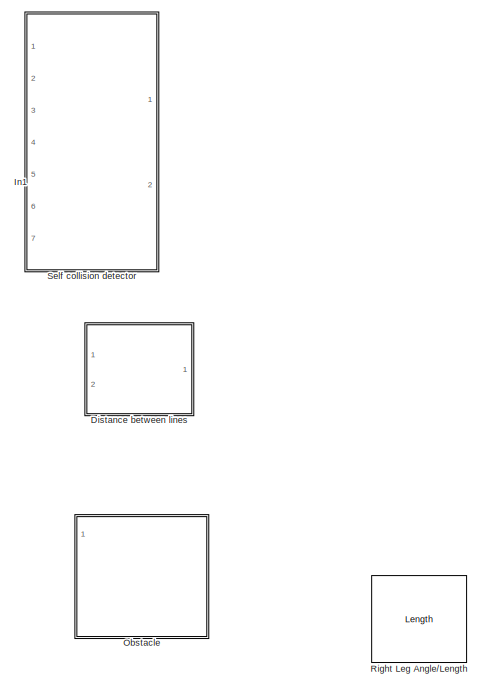
[diagram: root canvas - part 1/2, top right region]
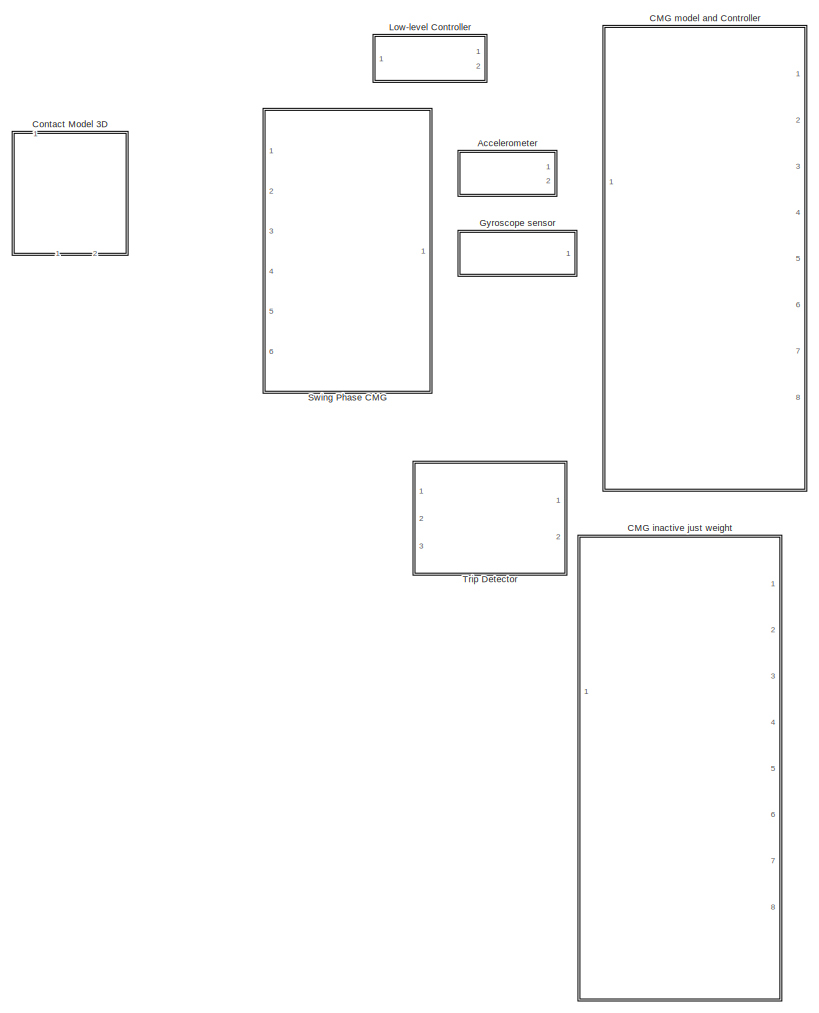
[diagram: root canvas - part 2/2, left side, full height]
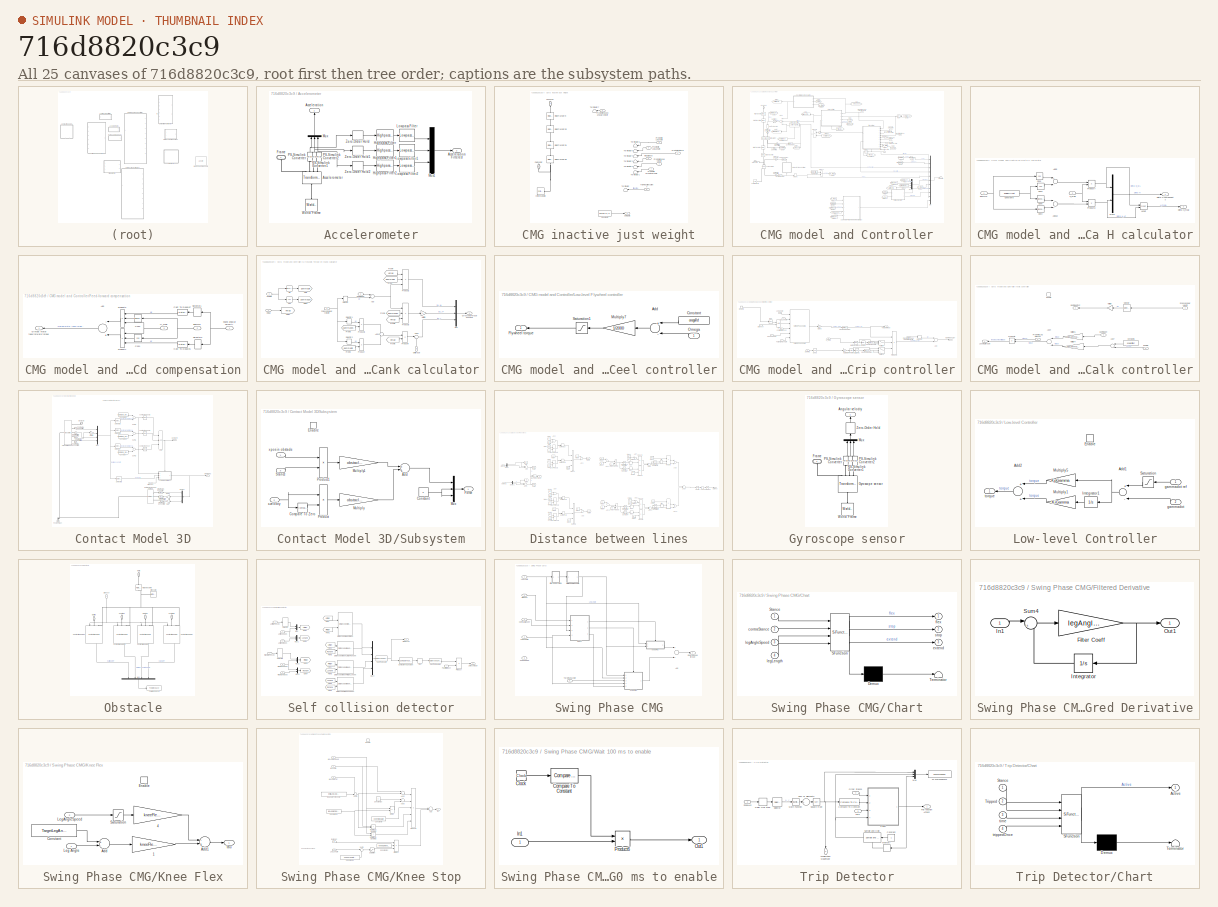
[diagram: thumbnail index - all 25 canvases of the model, root first then tree order]
MODEL slx_716d8820c3c9
KIND library
CONFIG AbsTol = auto
CONFIG EnableMultiTasking = off
CONFIG FixedStep = auto
CONFIG MaxStep = auto
CONFIG MinStep = auto
CONFIG RelTol = 1e-3
CONFIG SampleTimeConstraint = Unconstrained
CONFIG Solver = VariableStepAuto
CONFIG SolverName = VariableStepAuto
CONFIG StartTime = 0.0
CONFIG StopTime = 10.0
BLOCK [SubSystem] Accelerometer
  Ports = [0, 2, 0, 0, 0, 1]
  RequestExecContextInheritance = off
BLOCK [Outport] Accelerometer/Acceleration
  IconDisplay = Port number
BLOCK [Outport] Accelerometer/Acceleration Filtered
  IconDisplay = Port number
  Port = 2
BLOCK [Reference] Accelerometer/Accelerometer  REF=sm_lib/Frames and
Transforms/Transform
Sensor
  Ports = [0, 0, 0, 0, 0, 1, 4]
  SourceBlock = sm_lib/Frames and\nTransforms/Transform\nSensor
  SourceProductBaseCode = MS
  SourceProductName = Simscape Multibody
  SourceType = Transform\nSensor
BLOCK [PMIOPort] Accelerometer/Frame
  Side = Left
BLOCK [Reference] Accelerometer/Highpass Filter  REF=dspfdesign/Highpass Filter
  Ports = [1, 1]
  SourceBlock = dspfdesign/Highpass Filter
  SourceProductBaseCode = DS
  SourceProductName = DSP System Toolbox
  SourceType = dsp.HighpassFilter
BLOCK [Reference] Accelerometer/Highpass Filter1  REF=dspfdesign/Highpass Filter
  Ports = [1, 1]
  SourceBlock = dspfdesign/Highpass Filter
  SourceProductBaseCode = DS
  SourceProductName = DSP System Toolbox
  SourceType = dsp.HighpassFilter
BLOCK [Reference] Accelerometer/Highpass Filter2  REF=dspfdesign/Highpass Filter
  Ports = [1, 1]
  SourceBlock = dspfdesign/Highpass Filter
  SourceProductBaseCode = DS
  SourceProductName = DSP System Toolbox
  SourceType = dsp.HighpassFilter
BLOCK [Reference] Accelerometer/Lowpass Filter  REF=dspfdesign/Lowpass Filter
  Ports = [1, 1]
  SourceBlock = dspfdesign/Lowpass Filter
  SourceProductBaseCode = DS
  SourceProductName = DSP System Toolbox
  SourceType = dsp.LowpassFilter
BLOCK [Reference] Accelerometer/Lowpass Filter1  REF=dspfdesign/Lowpass Filter
  Ports = [1, 1]
  SourceBlock = dspfdesign/Lowpass Filter
  SourceProductBaseCode = DS
  SourceProductName = DSP System Toolbox
  SourceType = dsp.LowpassFilter
BLOCK [Reference] Accelerometer/Lowpass Filter2  REF=dspfdesign/Lowpass Filter
  Ports = [1, 1]
  SourceBlock = dspfdesign/Lowpass Filter
  SourceProductBaseCode = DS
  SourceProductName = DSP System Toolbox
  SourceType = dsp.LowpassFilter
BLOCK [Mux] Accelerometer/Mux
  DisplayOption = bar
  Inputs = 3
  Ports = [3, 1]
BLOCK [Mux] Accelerometer/Mux1
  DisplayOption = bar
  Inputs = 3
  Ports = [3, 1]
BLOCK [Reference] Accelerometer/PS-Simulink Converter  REF=nesl_utility/PS-Simulink
Converter
  Ports = [0, 1, 0, 0, 0, 1]
  SourceBlock = nesl_utility/PS-Simulink\nConverter
  SourceProductBaseCode = SS
  SourceProductName = Simscape
  SourceType = PS-Simulink\nConverter
BLOCK [Reference] Accelerometer/PS-Simulink Converter1  REF=nesl_utility/PS-Simulink
Converter
  Ports = [0, 1, 0, 0, 0, 1]
  SourceBlock = nesl_utility/PS-Simulink\nConverter
  SourceProductBaseCode = SS
  SourceProductName = Simscape
  SourceType = PS-Simulink\nConverter
BLOCK [Reference] Accelerometer/PS-Simulink Converter2  REF=nesl_utility/PS-Simulink
Converter
  Ports = [0, 1, 0, 0, 0, 1]
  SourceBlock = nesl_utility/PS-Simulink\nConverter
  SourceProductBaseCode = SS
  SourceProductName = Simscape
  SourceType = PS-Simulink\nConverter
BLOCK [Reference] Accelerometer/World Frame  REF=sm_lib/Frames and
Transforms/World Frame
  Ports = [0, 0, 0, 0, 0, 0, 1]
  SourceBlock = sm_lib/Frames and\nTransforms/World Frame
  SourceProductBaseCode = MS
  SourceProductName = Simscape Multibody
  SourceType = World Frame
BLOCK [ZeroOrderHold] Accelerometer/Zero-Order Hold
  SampleTime = zoh_sampletime
BLOCK [ZeroOrderHold] Accelerometer/Zero-Order Hold1
  SampleTime = zoh_sampletime
BLOCK [ZeroOrderHold] Accelerometer/Zero-Order Hold2
  SampleTime = zoh_sampletime
BLOCK [SubSystem] CMG inactive just weight
  Ports = [8, 1, 0, 0, 0, 1, 1]
  RequestExecContextInheritance = off
BLOCK [PMIOPort] CMG inactive just weight/CMG center
  Port = 2
  Side = Right
BLOCK [Outport] CMG inactive just weight/CMGData
  IconDisplay = Port number
BLOCK [Constant] CMG inactive just weight/Constant3
  Value = zeros(17,1)
BLOCK [Reference] CMG inactive just weight/Cylindrical Solid  REF=sm_lib/Body Elements/Cylindrical Solid
  Ports = [0, 0, 0, 0, 0, 0, 1]
  SourceBlock = sm_lib/Body Elements/Cylindrical Solid
  SourceProductBaseCode = MS
  SourceProductName = Simscape Multibody
  SourceType = Cylindrical Solid
BLOCK [Inport] CMG inactive just weight/Intact Stance
  IconDisplay = Port number
  Port = 6
BLOCK [Inport] CMG inactive just weight/Prosthetic Knee velocity
  IconDisplay = Port number
BLOCK [Inport] CMG inactive just weight/Prosthetic LegAngle
  IconDisplay = Port number
  Port = 2
BLOCK [Inport] CMG inactive just weight/Prosthetic LegLength
  IconDisplay = Port number
  Port = 3
BLOCK [Inport] CMG inactive just weight/Prosthetic Shank angular velocity
  IconDisplay = Port number
  Port = 8
BLOCK [Inport] CMG inactive just weight/Prosthetic Stance
  IconDisplay = Port number
  Port = 4
BLOCK [Inport] CMG inactive just weight/Prosthetic TargetLegAngle
  IconDisplay = Port number
  Port = 7
BLOCK [Reference] CMG inactive just weight/Rigid Transform  REF=sm_lib/Frames and
Transforms/Rigid
Transform
  Ports = [0, 0, 0, 0, 0, 1, 1]
  SourceBlock = sm_lib/Frames and\nTransforms/Rigid\nTransform
  SourceProductBaseCode = MS
  SourceProductName = Simscape Multibody
  SourceType = Rigid\nTransform
BLOCK [Reference] CMG inactive just weight/Rigid Transform1  REF=sm_lib/Frames and
Transforms/Rigid
Transform
  Ports = [0, 0, 0, 0, 0, 1, 1]
  SourceBlock = sm_lib/Frames and\nTransforms/Rigid\nTransform
  SourceProductBaseCode = MS
  SourceProductName = Simscape Multibody
  SourceType = Rigid\nTransform
BLOCK [Reference] CMG inactive just weight/Rigid Transform2  REF=sm_lib/Frames and
Transforms/Rigid
Transform
  Ports = [0, 0, 0, 0, 0, 1, 1]
  SourceBlock = sm_lib/Frames and\nTransforms/Rigid\nTransform
  SourceProductBaseCode = MS
  SourceProductName = Simscape Multibody
  SourceType = Rigid\nTransform
BLOCK [Reference] CMG inactive just weight/Rigid Transform5  REF=sm_lib/Frames and
Transforms/Rigid
Transform
  Ports = [0, 0, 0, 0, 0, 1, 1]
  SourceBlock = sm_lib/Frames and\nTransforms/Rigid\nTransform
  SourceProductBaseCode = MS
  SourceProductName = Simscape Multibody
  SourceType = Rigid\nTransform
BLOCK [PMIOPort] CMG inactive just weight/Shank CG
  Side = Left
BLOCK [Terminator] CMG inactive just weight/Terminator
BLOCK [Terminator] CMG inactive just weight/Terminator1
BLOCK [Terminator] CMG inactive just weight/Terminator2
BLOCK [Terminator] CMG inactive just weight/Terminator3
BLOCK [Terminator] CMG inactive just weight/Terminator4
BLOCK [Terminator] CMG inactive just weight/Terminator5
BLOCK [Terminator] CMG inactive just weight/Terminator6
BLOCK [Terminator] CMG inactive just weight/Terminator7
BLOCK [Inport] CMG inactive just weight/TripReactionActive?
  IconDisplay = Port number
  Port = 5
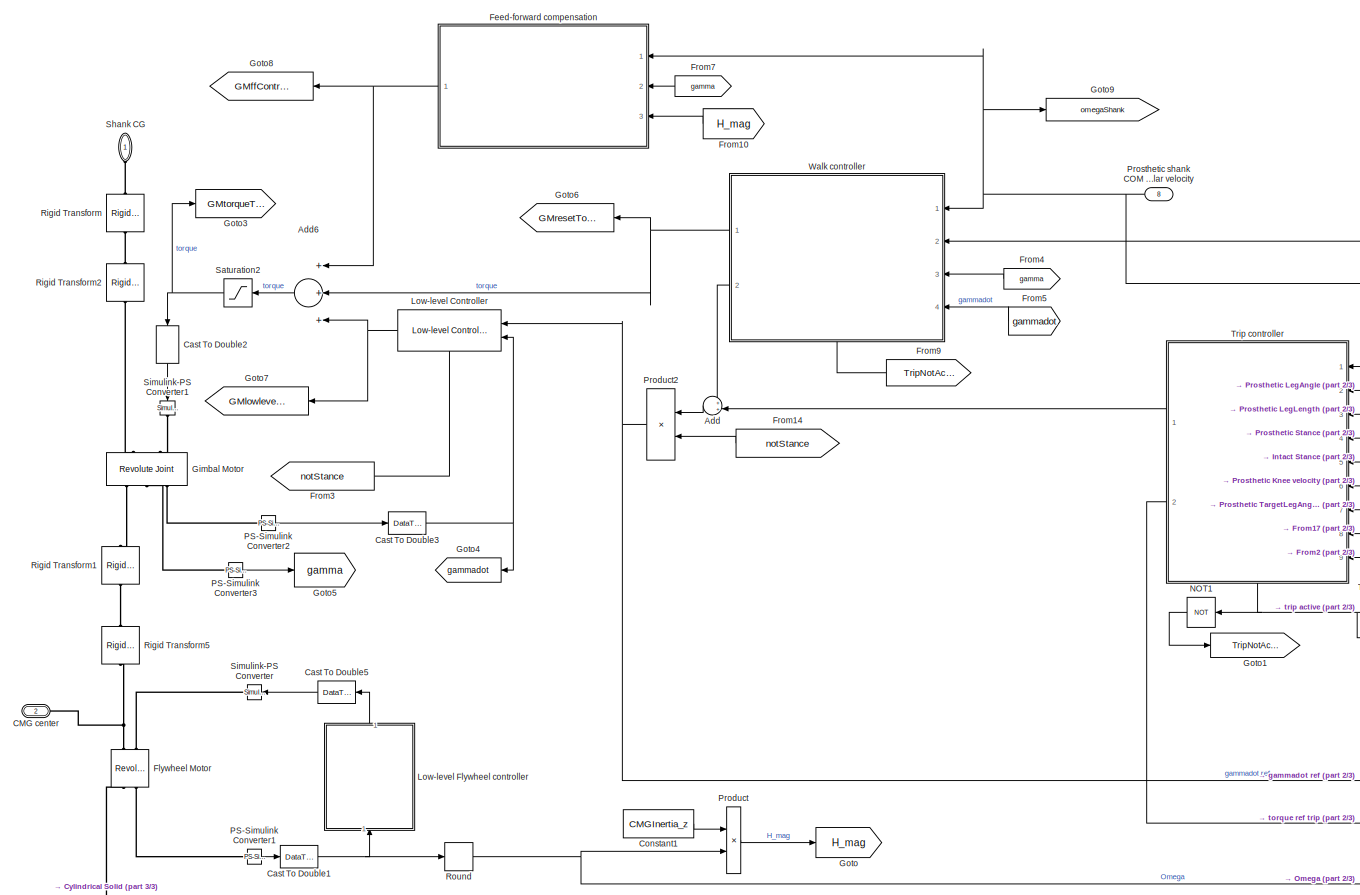
[diagram: CMG model and Controller - part 1/3, central region]
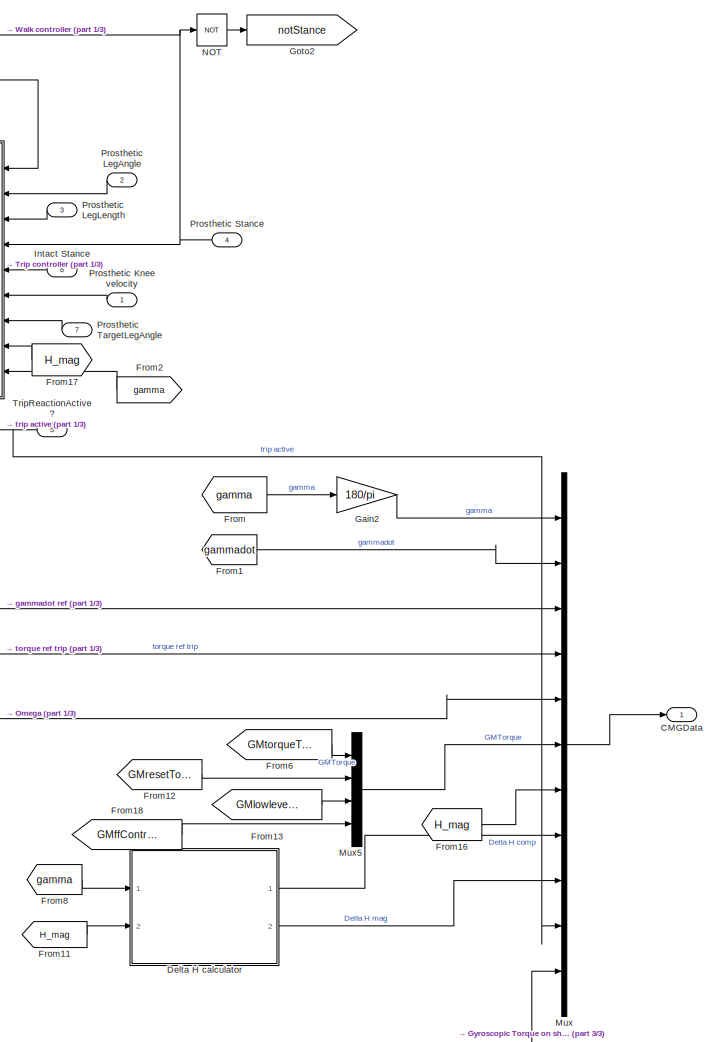
[diagram: CMG model and Controller - part 2/3, middle right region]
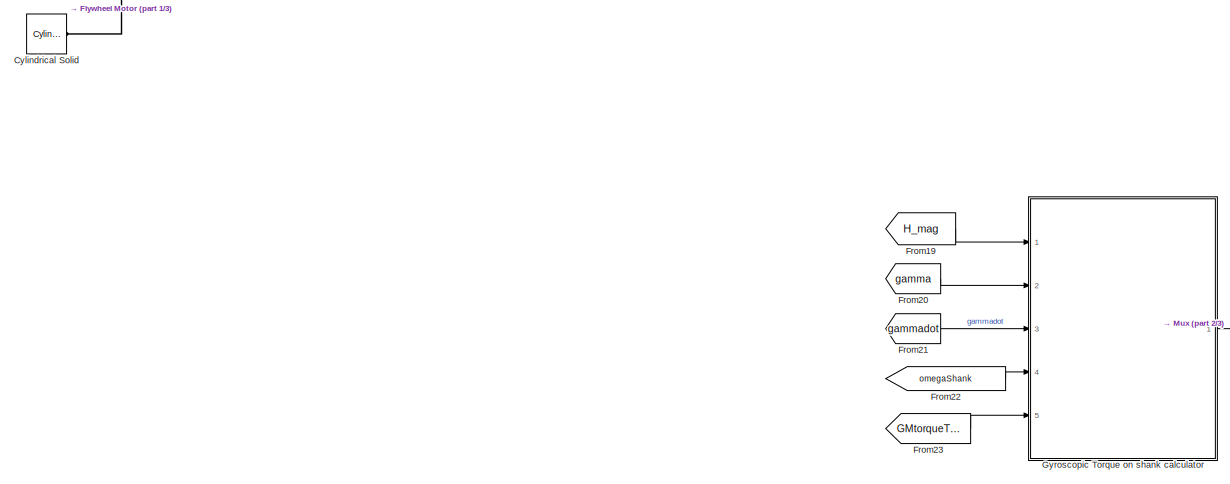
[diagram: CMG model and Controller - part 3/3, bottom left region]
BLOCK [SubSystem] CMG model and Controller
  Ports = [8, 1, 0, 0, 0, 1, 1]
  RequestExecContextInheritance = off
BLOCK [Sum] CMG model and Controller/Add
  IconShape = round
  InputSameDT = off
  Inputs = ++|
  OutDataTypeStr = Inherit: Inherit via internal rule
  Ports = [2, 1]
  SaturateOnIntegerOverflow = off
BLOCK [Sum] CMG model and Controller/Add6
  InputSameDT = off
  Inputs = +++
  OutDataTypeStr = Inherit: Inherit via internal rule
  Ports = [3, 1]
  SaturateOnIntegerOverflow = off
BLOCK [PMIOPort] CMG model and Controller/CMG center
  Port = 2
  Side = Right
BLOCK [Outport] CMG model and Controller/CMGData
  IconDisplay = Port number
BLOCK [DataTypeConversion] CMG model and Controller/Cast To Double1
  LockScale = on
  OutDataTypeStr = double
  RndMeth = Floor
  SaturateOnIntegerOverflow = off
BLOCK [DataTypeConversion] CMG model and Controller/Cast To Double2
  LockScale = on
  OutDataTypeStr = double
  RndMeth = Floor
  SaturateOnIntegerOverflow = off
BLOCK [DataTypeConversion] CMG model and Controller/Cast To Double3
  LockScale = on
  OutDataTypeStr = double
  RndMeth = Floor
  SaturateOnIntegerOverflow = off
BLOCK [DataTypeConversion] CMG model and Controller/Cast To Double5
  LockScale = on
  OutDataTypeStr = double
  RndMeth = Floor
  SaturateOnIntegerOverflow = off
BLOCK [Constant] CMG model and Controller/Constant1
  Value = CMGInertia_z
BLOCK [Reference] CMG model and Controller/Cylindrical Solid  REF=sm_lib/Body Elements/Cylindrical Solid
  Ports = [0, 0, 0, 0, 0, 0, 1]
  SourceBlock = sm_lib/Body Elements/Cylindrical Solid
  SourceProductBaseCode = MS
  SourceProductName = Simscape Multibody
  SourceType = Cylindrical Solid
BLOCK [SubSystem] CMG model and Controller/Delta H calculator
  Ports = [2, 2]
  RequestExecContextInheritance = off
BLOCK [Sum] CMG model and Controller/Delta H calculator/Add10
  InputSameDT = off
  Inputs = -+
  OutDataTypeStr = Inherit: Inherit via internal rule
  Ports = [2, 1]
  SaturateOnIntegerOverflow = off
BLOCK [Sum] CMG model and Controller/Delta H calculator/Add5
  InputSameDT = off
  Inputs = +-
  OutDataTypeStr = Inherit: Inherit via internal rule
  Ports = [2, 1]
  SaturateOnIntegerOverflow = off
BLOCK [Constant] CMG model and Controller/Delta H calculator/Constant6
  Value = angleOffset
BLOCK [Trigonometry] CMG model and Controller/Delta H calculator/Cos3
  Operator = cos
  OutputSignalType = real
  Ports = [1, 1]
BLOCK [Trigonometry] CMG model and Controller/Delta H calculator/Cos4
  OutputSignalType = real
  Ports = [1, 1]
BLOCK [Trigonometry] CMG model and Controller/Delta H calculator/Cos5
  Operator = cos
  OutputSignalType = real
  Ports = [1, 1]
BLOCK [Trigonometry] CMG model and Controller/Delta H calculator/Cos6
  OutputSignalType = real
  Ports = [1, 1]
BLOCK [Outport] CMG model and Controller/Delta H calculator/Delta H components
  IconDisplay = Port number
BLOCK [Outport] CMG model and Controller/Delta H calculator/Delta H_mag
  IconDisplay = Port number
  Port = 2
BLOCK [Inport] CMG model and Controller/Delta H calculator/H_mag
  IconDisplay = Port number
  Port = 2
BLOCK [Math] CMG model and Controller/Delta H calculator/Hypot
  Operator = hypot
  Ports = [2, 1]
  SignedPower = off
BLOCK [Mux] CMG model and Controller/Delta H calculator/Mux3
  DisplayOption = bar
  Inputs = 2
  Ports = [2, 1]
BLOCK [Product] CMG model and Controller/Delta H calculator/Product7
  InputSameDT = off
  OutDataTypeStr = Inherit: Inherit via internal rule
  Ports = [2, 1]
  RndMeth = Floor
  SaturateOnIntegerOverflow = off
BLOCK [Product] CMG model and Controller/Delta H calculator/Product8
  InputSameDT = off
  OutDataTypeStr = Inherit: Inherit via internal rule
  Ports = [2, 1]
  RndMeth = Floor
  SaturateOnIntegerOverflow = off
BLOCK [Inport] CMG model and Controller/Delta H calculator/gamma
  IconDisplay = Port number
BLOCK [SubSystem] CMG model and Controller/Feed-forward compensation
  Ports = [3, 1]
  RequestExecContextInheritance = off
BLOCK [Sum] CMG model and Controller/Feed-forward compensation/Add
  InputSameDT = off
  Inputs = -+
  OutDataTypeStr = Inherit: Inherit via internal rule
  Ports = [2, 1]
  SaturateOnIntegerOverflow = off
BLOCK [DataTypeConversion] CMG model and Controller/Feed-forward compensation/Cast To Double1
  LockScale = on
  OutDataTypeStr = double
  RndMeth = Floor
  SaturateOnIntegerOverflow = off
BLOCK [DataTypeConversion] CMG model and Controller/Feed-forward compensation/Cast To Double7
  LockScale = on
  OutDataTypeStr = double
  RndMeth = Floor
  SaturateOnIntegerOverflow = off
BLOCK [Trigonometry] CMG model and Controller/Feed-forward compensation/Cos1
  Operator = cos
  OutputSignalType = real
  Ports = [1, 1]
BLOCK [Trigonometry] CMG model and Controller/Feed-forward compensation/Cos2
  OutputSignalType = real
  Ports = [1, 1]
BLOCK [Outport] CMG model and Controller/Feed-forward compensation/Gimbal motor feed-forward torque
  IconDisplay = Port number
  InitialOutput = [0]
  OutputWhenDisabled = reset
BLOCK [Inport] CMG model and Controller/Feed-forward compensation/H_mag
  IconDisplay = Port number
  Port = 3
BLOCK [Product] CMG model and Controller/Feed-forward compensation/Product1
  InputSameDT = off
  Inputs = 3
  OutDataTypeStr = Inherit: Inherit via internal rule
  Ports = [3, 1]
  RndMeth = Floor
  SaturateOnIntegerOverflow = off
BLOCK [Product] CMG model and Controller/Feed-forward compensation/Product2
  InputSameDT = off
  Inputs = 3
  OutDataTypeStr = Inherit: Inherit via internal rule
  Ports = [3, 1]
  RndMeth = Floor
  SaturateOnIntegerOverflow = off
BLOCK [Selector] CMG model and Controller/Feed-forward compensation/Selector1
  IndexOptions = Index vector (dialog)
  Indices = [1]
  InputPortWidth = 3
  OutputSizes = 1
  Ports = [1, 1]
BLOCK [Selector] CMG model and Controller/Feed-forward compensation/Selector2
  IndexOptions = Index vector (dialog)
  Indices = [2]
  InputPortWidth = 3
  OutputSizes = 1
  Ports = [1, 1]
BLOCK [Inport] CMG model and Controller/Feed-forward compensation/Shank angular velocity
  IconDisplay = Port number
BLOCK [Inport] CMG model and Controller/Feed-forward compensation/gamma
  IconDisplay = Port number
  Port = 2
BLOCK [Reference] CMG model and Controller/Flywheel Motor  REF=sm_lib/Joints/Revolute Joint
  Ports = [0, 0, 0, 0, 0, 2, 2]
  SourceBlock = sm_lib/Joints/Revolute Joint
  SourceProductBaseCode = MS
  SourceProductName = Simscape Multibody
  SourceType = Revolute Joint
BLOCK [From] CMG model and Controller/From
  GotoTag = gamma
BLOCK [From] CMG model and Controller/From1
  GotoTag = gammadot
BLOCK [From] CMG model and Controller/From10
  GotoTag = H_mag
BLOCK [From] CMG model and Controller/From11
  GotoTag = H_mag
BLOCK [From] CMG model and Controller/From12
  GotoTag = GMresetTorque
BLOCK [From] CMG model and Controller/From13
  GotoTag = GMlowlevelControl
BLOCK [From] CMG model and Controller/From14
  GotoTag = notStance
BLOCK [From] CMG model and Controller/From16
  GotoTag = H_mag
BLOCK [From] CMG model and Controller/From17
  GotoTag = H_mag
BLOCK [From] CMG model and Controller/From18
  GotoTag = GMffControl
BLOCK [From] CMG model and Controller/From19
  GotoTag = H_mag
BLOCK [From] CMG model and Controller/From2
  GotoTag = gamma
BLOCK [From] CMG model and Controller/From20
  GotoTag = gamma
BLOCK [From] CMG model and Controller/From21
  GotoTag = gammadot
BLOCK [From] CMG model and Controller/From22
  GotoTag = omegaShank
BLOCK [From] CMG model and Controller/From23
  GotoTag = GMtorqueTotal
BLOCK [From] CMG model and Controller/From3
  GotoTag = notStance
BLOCK [From] CMG model and Controller/From4
  GotoTag = gamma
BLOCK [From] CMG model and Controller/From5
  GotoTag = gammadot
BLOCK [From] CMG model and Controller/From6
  GotoTag = GMtorqueTotal
BLOCK [From] CMG model and Controller/From7
  GotoTag = gamma
BLOCK [From] CMG model and Controller/From8
  GotoTag = gamma
BLOCK [From] CMG model and Controller/From9
  GotoTag = TripNotActive
BLOCK [Gain] CMG model and Controller/Gain2
  Gain = 180/pi
  OutDataTypeStr = Inherit: Inherit via internal rule
  ParamDataTypeStr = Inherit: Inherit via internal rule
  SaturateOnIntegerOverflow = off
BLOCK [Reference] CMG model and Controller/Gimbal Motor  REF=sm_lib/Joints/Revolute Joint
  Ports = [0, 0, 0, 0, 0, 2, 3]
  SourceBlock = sm_lib/Joints/Revolute Joint
  SourceProductBaseCode = MS
  SourceProductName = Simscape Multibody
  SourceType = Revolute Joint
BLOCK [Goto] CMG model and Controller/Goto
  GotoTag = H_mag
BLOCK [Goto] CMG model and Controller/Goto1
  GotoTag = TripNotActive
BLOCK [Goto] CMG model and Controller/Goto2
  GotoTag = notStance
BLOCK [Goto] CMG model and Controller/Goto3
  GotoTag = GMtorqueTotal
BLOCK [Goto] CMG model and Controller/Goto4
  GotoTag = gammadot
BLOCK [Goto] CMG model and Controller/Goto5
  GotoTag = gamma
BLOCK [Goto] CMG model and Controller/Goto6
  GotoTag = GMresetTorque
BLOCK [Goto] CMG model and Controller/Goto7
  GotoTag = GMlowlevelControl
BLOCK [Goto] CMG model and Controller/Goto8
  GotoTag = GMffControl
BLOCK [Goto] CMG model and Controller/Goto9
  GotoTag = omegaShank
BLOCK [SubSystem] CMG model and Controller/Gyroscopic Torque on shank calculator
  Ports = [5, 1]
  RequestExecContextInheritance = off
BLOCK [Sum] CMG model and Controller/Gyroscopic Torque on shank calculator/Add
  InputSameDT = off
  OutDataTypeStr = Inherit: Inherit via internal rule
  Ports = [2, 1]
  SaturateOnIntegerOverflow = off
BLOCK [Sum] CMG model and Controller/Gyroscopic Torque on shank calculator/Add1
  IconShape = round
  InputSameDT = off
  Inputs = +-
  OutDataTypeStr = Inherit: Inherit via internal rule
  Ports = [2, 1]
  SaturateOnIntegerOverflow = off
BLOCK [Sum] CMG model and Controller/Gyroscopic Torque on shank calculator/Add2
  IconShape = round
  InputSameDT = off
  Inputs = |+-
  OutDataTypeStr = Inherit: Inherit via internal rule
  Ports = [2, 1]
  SaturateOnIntegerOverflow = off
BLOCK [Trigonometry] CMG model and Controller/Gyroscopic Torque on shank calculator/Cos
  Operator = cos
  Ports = [1, 1]
BLOCK [From] CMG model and Controller/Gyroscopic Torque on shank calculator/From
  GotoTag = gammaSin
BLOCK [From] CMG model and Controller/Gyroscopic Torque on shank calculator/From1
  GotoTag = gammaCos
BLOCK [From] CMG model and Controller/Gyroscopic Torque on shank calculator/From2
  GotoTag = gammaSin
BLOCK [From] CMG model and Controller/Gyroscopic Torque on shank calculator/From3
  GotoTag = gammaCos
BLOCK [From] CMG model and Controller/Gyroscopic Torque on shank calculator/From4
  GotoTag = Hmag
BLOCK [From] CMG model and Controller/Gyroscopic Torque on shank calculator/From5
  GotoTag = Hmag
BLOCK [From] CMG model and Controller/Gyroscopic Torque on shank calculator/From6
  GotoTag = Hmag
BLOCK [Inport] CMG model and Controller/Gyroscopic Torque on shank calculator/GM torque
  IconDisplay = Port number
  Port = 5
BLOCK [Goto] CMG model and Controller/Gyroscopic Torque on shank calculator/Goto
  GotoTag = gammaSin
BLOCK [Goto] CMG model and Controller/Gyroscopic Torque on shank calculator/Goto1
  GotoTag = gammaCos
BLOCK [Goto] CMG model and Controller/Gyroscopic Torque on shank calculator/Goto2
  GotoTag = Hmag
BLOCK [Outport] CMG model and Controller/Gyroscopic Torque on shank calculator/Gyroscopic Torque on shank
  IconDisplay = Port number
BLOCK [Inport] CMG model and Controller/Gyroscopic Torque on shank calculator/H mag
  IconDisplay = Port number
BLOCK [Gain] CMG model and Controller/Gyroscopic Torque on shank calculator/Multiply
  Gain = -1
  OutDataTypeStr = Inherit: Inherit via internal rule
  ParamDataTypeStr = Inherit: Inherit via internal rule
  SaturateOnIntegerOverflow = off
BLOCK [Mux] CMG model and Controller/Gyroscopic Torque on shank calculator/Mux
  DisplayOption = bar
  Inputs = 3
  Ports = [3, 1]
BLOCK [Product] CMG model and Controller/Gyroscopic Torque on shank calculator/Product
  InputSameDT = off
  OutDataTypeStr = Inherit: Inherit via internal rule
  Ports = [2, 1]
  RndMeth = Floor
  SaturateOnIntegerOverflow = off
BLOCK [Product] CMG model and Controller/Gyroscopic Torque on shank calculator/Product1
  InputSameDT = off
  OutDataTypeStr = Inherit: Inherit via internal rule
  Ports = [2, 1]
  RndMeth = Floor
  SaturateOnIntegerOverflow = off
BLOCK [Product] CMG model and Controller/Gyroscopic Torque on shank calculator/Product2
  InputSameDT = off
  Inputs = 3
  OutDataTypeStr = Inherit: Inherit via internal rule
  Ports = [3, 1]
  RndMeth = Floor
  SaturateOnIntegerOverflow = off
BLOCK [Product] CMG model and Controller/Gyroscopic Torque on shank calculator/Product3
  InputSameDT = off
  Inputs = 3
  OutDataTypeStr = Inherit: Inherit via internal rule
  Ports = [3, 1]
  RndMeth = Floor
  SaturateOnIntegerOverflow = off
BLOCK [Product] CMG model and Controller/Gyroscopic Torque on shank calculator/Product4
  InputSameDT = off
  OutDataTypeStr = Inherit: Inherit via internal rule
  Ports = [2, 1]
  RndMeth = Floor
  SaturateOnIntegerOverflow = off
BLOCK [Selector] CMG model and Controller/Gyroscopic Torque on shank calculator/Selector
  IndexOptions = Index vector (dialog)
  Indices = [3]
  InputPortWidth = 3
  OutputSizes = 1
  Ports = [1, 1]
BLOCK [Selector] CMG model and Controller/Gyroscopic Torque on shank calculator/Selector1
  IndexOptions = Index vector (dialog)
  Indices = [2]
  InputPortWidth = 3
  OutputSizes = 1
  Ports = [1, 1]
BLOCK [Selector] CMG model and Controller/Gyroscopic Torque on shank calculator/Selector2
  IndexOptions = Index vector (dialog)
  Indices = [1]
  InputPortWidth = 3
  OutputSizes = 1
  Ports = [1, 1]
BLOCK [Inport] CMG model and Controller/Gyroscopic Torque on shank calculator/Shank angular velocity
  IconDisplay = Port number
  Port = 4
BLOCK [Trigonometry] CMG model and Controller/Gyroscopic Torque on shank calculator/Sin
  Ports = [1, 1]
BLOCK [Inport] CMG model and Controller/Gyroscopic Torque on shank calculator/gamma
  IconDisplay = Port number
  Port = 2
BLOCK [Inport] CMG model and Controller/Gyroscopic Torque on shank calculator/gammadot
  IconDisplay = Port number
  Port = 3
BLOCK [Inport] CMG model and Controller/Intact Stance
  IconDisplay = Port number
  Port = 6
BLOCK [Reference] CMG model and Controller/Low-level Controller  REF=$bdroot/Low-level Controller
  Ports = [2, 1, 1]
  SourceBlock = $bdroot/Low-level Controller
  SourceType = SubSystem
BLOCK [SubSystem] CMG model and Controller/Low-level Flywheel controller
  Ports = [1, 1]
  RequestExecContextInheritance = off
BLOCK [Sum] CMG model and Controller/Low-level Flywheel controller/Add
  InputSameDT = off
  Inputs = +-
  OutDataTypeStr = Inherit: Inherit via internal rule
  Ports = [2, 1]
  SaturateOnIntegerOverflow = off
BLOCK [Constant] CMG model and Controller/Low-level Flywheel controller/Constant
  Value = omegaRef
BLOCK [Outport] CMG model and Controller/Low-level Flywheel controller/Flywheel torque
  IconDisplay = Port number
BLOCK [Gain] CMG model and Controller/Low-level Flywheel controller/Multiply7
  Gain = 1/2000
  OutDataTypeStr = Inherit: Inherit via internal rule
  ParamDataTypeStr = Inherit: Inherit via internal rule
  SaturateOnIntegerOverflow = off
BLOCK [Inport] CMG model and Controller/Low-level Flywheel controller/Omega
  IconDisplay = Port number
BLOCK [Saturate] CMG model and Controller/Low-level Flywheel controller/Saturation1
  InputPortMap = u0
  LowerLimit = -maxTflywheelmotor
  Ports = [1, 1]
  UpperLimit = maxTflywheelmotor
BLOCK [Mux] CMG model and Controller/Mux
  DisplayOption = bar
  Inputs = [1 1 1 1 1 4 1 2 1 1 3]
  Ports = [11, 1]
BLOCK [Mux] CMG model and Controller/Mux5
  DisplayOption = bar
  Ports = [4, 1]
BLOCK [Logic] CMG model and Controller/NOT
  AllPortsSameDT = off
  IconShape = distinctive
  Operator = NOT
  OutDataTypeStr = boolean
  Ports = [1, 1]
BLOCK [Logic] CMG model and Controller/NOT1
  AllPortsSameDT = off
  IconShape = distinctive
  Operator = NOT
  OutDataTypeStr = boolean
  Ports = [1, 1]
BLOCK [Reference] CMG model and Controller/PS-Simulink Converter1  REF=nesl_utility/PS-Simulink
Converter
  Ports = [0, 1, 0, 0, 0, 1]
  SourceBlock = nesl_utility/PS-Simulink\nConverter
  SourceProductBaseCode = SS
  SourceProductName = Simscape
  SourceType = PS-Simulink\nConverter
BLOCK [Reference] CMG model and Controller/PS-Simulink Converter2  REF=nesl_utility/PS-Simulink
Converter
  Ports = [0, 1, 0, 0, 0, 1]
  SourceBlock = nesl_utility/PS-Simulink\nConverter
  SourceProductBaseCode = SS
  SourceProductName = Simscape
  SourceType = PS-Simulink\nConverter
BLOCK [Reference] CMG model and Controller/PS-Simulink Converter3  REF=nesl_utility/PS-Simulink
Converter
  Ports = [0, 1, 0, 0, 0, 1]
  SourceBlock = nesl_utility/PS-Simulink\nConverter
  SourceProductBaseCode = SS
  SourceProductName = Simscape
  SourceType = PS-Simulink\nConverter
BLOCK [Product] CMG model and Controller/Product
  InputSameDT = off
  OutDataTypeStr = Inherit: Inherit via internal rule
  Ports = [2, 1]
  RndMeth = Floor
  SaturateOnIntegerOverflow = off
BLOCK [Product] CMG model and Controller/Product2
  InputSameDT = off
  OutDataTypeStr = Inherit: Inherit via internal rule
  Ports = [2, 1]
  RndMeth = Floor
  SaturateOnIntegerOverflow = off
BLOCK [Inport] CMG model and Controller/Prosthetic Knee velocity
  IconDisplay = Port number
BLOCK [Inport] CMG model and Controller/Prosthetic LegAngle
  IconDisplay = Port number
  Port = 2
BLOCK [Inport] CMG model and Controller/Prosthetic LegLength
  IconDisplay = Port number
  Port = 3
BLOCK [Inport] CMG model and Controller/Prosthetic Stance
  IconDisplay = Port number
  Port = 4
BLOCK [Inport] CMG model and Controller/Prosthetic TargetLegAngle
  IconDisplay = Port number
  Port = 7
BLOCK [Inport] CMG model and Controller/Prosthetic shank COM angular velocity
  IconDisplay = Port number
  Port = 8
BLOCK [Reference] CMG model and Controller/Rigid Transform  REF=sm_lib/Frames and
Transforms/Rigid
Transform
  Ports = [0, 0, 0, 0, 0, 1, 1]
  SourceBlock = sm_lib/Frames and\nTransforms/Rigid\nTransform
  SourceProductBaseCode = MS
  SourceProductName = Simscape Multibody
  SourceType = Rigid\nTransform
BLOCK [Reference] CMG model and Controller/Rigid Transform1  REF=sm_lib/Frames and
Transforms/Rigid
Transform
  Ports = [0, 0, 0, 0, 0, 1, 1]
  SourceBlock = sm_lib/Frames and\nTransforms/Rigid\nTransform
  SourceProductBaseCode = MS
  SourceProductName = Simscape Multibody
  SourceType = Rigid\nTransform
BLOCK [Reference] CMG model and Controller/Rigid Transform2  REF=sm_lib/Frames and
Transforms/Rigid
Transform
  Ports = [0, 0, 0, 0, 0, 1, 1]
  SourceBlock = sm_lib/Frames and\nTransforms/Rigid\nTransform
  SourceProductBaseCode = MS
  SourceProductName = Simscape Multibody
  SourceType = Rigid\nTransform
BLOCK [Reference] CMG model and Controller/Rigid Transform5  REF=sm_lib/Frames and
Transforms/Rigid
Transform
  Ports = [0, 0, 0, 0, 0, 1, 1]
  SourceBlock = sm_lib/Frames and\nTransforms/Rigid\nTransform
  SourceProductBaseCode = MS
  SourceProductName = Simscape Multibody
  SourceType = Rigid\nTransform
BLOCK [Rounding] CMG model and Controller/Round
  Operator = round
BLOCK [Saturate] CMG model and Controller/Saturation2
  InputPortMap = u0
  LowerLimit = -maxGMTorque
  Ports = [1, 1]
  UpperLimit = maxGMTorque
BLOCK [PMIOPort] CMG model and Controller/Shank CG
  Side = Left
BLOCK [Reference] CMG model and Controller/Simulink-PS Converter  REF=nesl_utility/Simulink-PS
Converter
  Ports = [1, 0, 0, 0, 0, 0, 1]
  SourceBlock = nesl_utility/Simulink-PS\nConverter
  SourceProductBaseCode = SS
  SourceProductName = Simscape
  SourceType = Simulink-PS\nConverter
BLOCK [Reference] CMG model and Controller/Simulink-PS Converter1  REF=nesl_utility/Simulink-PS
Converter
  Ports = [1, 0, 0, 0, 0, 0, 1]
  SourceBlock = nesl_utility/Simulink-PS\nConverter
  SourceProductBaseCode = SS
  SourceProductName = Simscape
  SourceType = Simulink-PS\nConverter
BLOCK [SubSystem] CMG model and Controller/Trip controller
  Ports = [9, 2, 1]
  RequestExecContextInheritance = off
BLOCK [Sum] CMG model and Controller/Trip controller/Add
  InputSameDT = off
  Inputs = -+
  OutDataTypeStr = Inherit: Inherit via internal rule
  Ports = [2, 1]
  SaturateOnIntegerOverflow = off
BLOCK [DataTypeConversion] CMG model and Controller/Trip controller/Cast To Double
  LockScale = on
  OutDataTypeStr = double
  RndMeth = Floor
  SaturateOnIntegerOverflow = off
BLOCK [DataTypeConversion] CMG model and Controller/Trip controller/Cast To Double1
  LockScale = on
  OutDataTypeStr = double
  RndMeth = Floor
  SaturateOnIntegerOverflow = off
BLOCK [DataTypeConversion] CMG model and Controller/Trip controller/Cast To Double8
  LockScale = on
  OutDataTypeStr = double
  RndMeth = Floor
  SaturateOnIntegerOverflow = off
BLOCK [Trigonometry] CMG model and Controller/Trip controller/Cos1
  Operator = cos
  OutputSignalType = real
  Ports = [1, 1]
BLOCK [EnablePort] CMG model and Controller/Trip controller/Enable
  Ports = [0, 1]
  ShowOutputPort = on
  StatesWhenEnabling = reset
  ZeroCross = off
BLOCK [Gain] CMG model and Controller/Trip controller/Gain
  OutDataTypeStr = Inherit: Inherit via internal rule
  ParamDataTypeStr = Inherit: Inherit via internal rule
  SaturateOnIntegerOverflow = off
BLOCK [Gain] CMG model and Controller/Trip controller/Gain3
  Gain = -1
  OutDataTypeStr = Inherit: Inherit via internal rule
  ParamDataTypeStr = Inherit: Inherit via internal rule
  SaturateOnIntegerOverflow = off
BLOCK [Outport] CMG model and Controller/Trip controller/Gammadot_ref
  IconDisplay = Port number
  InitialOutput = [0]
  OutputWhenDisabled = reset
BLOCK [Inport] CMG model and Controller/Trip controller/H_mag
  IconDisplay = Port number
  Port = 8
BLOCK [RelationalOperator] CMG model and Controller/Trip controller/IsNaN
  InputSameDT = off
  Operator = isFinite
  OutDataTypeStr = boolean
  Ports = [1, 1]
  RndMeth = Simplest
BLOCK [RelationalOperator] CMG model and Controller/Trip controller/IsNaN1
  InputSameDT = off
  Operator = isFinite
  OutDataTypeStr = boolean
  Ports = [1, 1]
  RndMeth = Simplest
BLOCK [Inport] CMG model and Controller/Trip controller/Knee speed
  IconDisplay = Port number
  Port = 6
BLOCK [Inport] CMG model and Controller/Trip controller/Leg Length
  IconDisplay = Port number
  Port = 3
BLOCK [Inport] CMG model and Controller/Trip controller/Leg angle
  IconDisplay = Port number
  Port = 2
BLOCK [Math] CMG model and Controller/Trip controller/Math Reciprocal
  Operator = reciprocal
  Ports = [1, 1]
BLOCK [Math] CMG model and Controller/Trip controller/Math Reciprocal1
  Operator = reciprocal
  Ports = [1, 1]
BLOCK [Logic] CMG model and Controller/Trip controller/NOT
  AllPortsSameDT = off
  IconShape = distinctive
  Operator = NOT
  OutDataTypeStr = boolean
  Ports = [1, 1]
BLOCK [Logic] CMG model and Controller/Trip controller/OR
  AllPortsSameDT = off
  OutDataTypeStr = boolean
  Ports = [2, 1]
BLOCK [Product] CMG model and Controller/Trip controller/Product4
  InputSameDT = off
  Inputs = ***
  OutDataTypeStr = Inherit: Inherit via internal rule
  Ports = [3, 1]
  RndMeth = Floor
  SaturateOnIntegerOverflow = off
BLOCK [Inport] CMG model and Controller/Trip controller/Prosthetic Shank Angular velocity
  IconDisplay = Port number
BLOCK [Selector] CMG model and Controller/Trip controller/Selector
  IndexOptions = Index vector (dialog)
  Indices = [3]
  InputPortWidth = 3
  OutputSizes = 1
  Ports = [1, 1]
BLOCK [Reference] CMG model and Controller/Trip controller/Swing Phase CMG  REF=$bdroot/Swing Phase CMG
  Ports = [6, 1]
  SourceBlock = $bdroot/Swing Phase CMG
BLOCK [Switch] CMG model and Controller/Trip controller/Switch
  Criteria = u2 ~= 0
  InputSameDT = off
  SaturateOnIntegerOverflow = off
BLOCK [Switch] CMG model and Controller/Trip controller/Switch1
  Criteria = u2 ~= 0
  InputSameDT = off
  SaturateOnIntegerOverflow = off
BLOCK [Inport] CMG model and Controller/Trip controller/Target Leg Angle
  IconDisplay = Port number
  Port = 7
BLOCK [Outport] CMG model and Controller/Trip controller/Torque ref out
  IconDisplay = Port number
  InitialOutput = [0]
  OutputWhenDisabled = reset
  Port = 2
BLOCK [Inport] CMG model and Controller/Trip controller/contraStance?
  IconDisplay = Port number
  Port = 5
BLOCK [Inport] CMG model and Controller/Trip controller/gamma
  IconDisplay = Port number
  Port = 9
BLOCK [Inport] CMG model and Controller/Trip controller/stance?
  IconDisplay = Port number
  Port = 4
BLOCK [Inport] CMG model and Controller/TripReactionActive?
  IconDisplay = Port number
  Port = 5
BLOCK [SubSystem] CMG model and Controller/Walk controller
  Ports = [4, 2, 1]
  RequestExecContextInheritance = off
BLOCK [Sum] CMG model and Controller/Walk controller/Add4
  InputSameDT = off
  Inputs = --
  OutDataTypeStr = Inherit: Inherit via internal rule
  Ports = [2, 1]
  SaturateOnIntegerOverflow = off
BLOCK [Sum] CMG model and Controller/Walk controller/Add7
  InputSameDT = off
  Inputs = -+
  OutDataTypeStr = Inherit: Inherit via internal rule
  Ports = [2, 1]
  SaturateOnIntegerOverflow = off
BLOCK [Constant] CMG model and Controller/Walk controller/Constant5
  Value = angleOffset
BLOCK [EnablePort] CMG model and Controller/Walk controller/Enable
  Ports = []
  StatesWhenEnabling = reset
BLOCK [Outport] CMG model and Controller/Walk controller/Gammadot ref
  IconDisplay = Port number
  InitialOutput = [0]
  OutputWhenDisabled = reset
  Port = 2
BLOCK [Outport] CMG model and Controller/Walk controller/Locking torque
  IconDisplay = Port number
  InitialOutput = [0]
  OutputWhenDisabled = reset
BLOCK [Gain] CMG model and Controller/Walk controller/Multiply
  Gain = -1
  OutDataTypeStr = Inherit: Inherit via internal rule
  ParamDataTypeStr = Inherit: Inherit via internal rule
  SaturateOnIntegerOverflow = off
BLOCK [Gain] CMG model and Controller/Walk controller/Multiply4
  Gain = KpGammaReset
  OutDataTypeStr = Inherit: Inherit via internal rule
  ParamDataTypeStr = Inherit: Inherit via internal rule
  SaturateOnIntegerOverflow = off
BLOCK [Gain] CMG model and Controller/Walk controller/Multiply6
  Gain = KdGammaReset
  OutDataTypeStr = Inherit: Inherit via internal rule
  ParamDataTypeStr = Inherit: Inherit via internal rule
  SaturateOnIntegerOverflow = off
BLOCK [Product] CMG model and Controller/Walk controller/Product6
  InputSameDT = off
  OutDataTypeStr = Inherit: Inherit via internal rule
  Ports = [2, 1]
  RndMeth = Floor
  SaturateOnIntegerOverflow = off
BLOCK [Inport] CMG model and Controller/Walk controller/Prosthetic Leg stance?
  IconDisplay = Port number
  Port = 2
BLOCK [Selector] CMG model and Controller/Walk controller/Selector
  IndexOptions = Index vector (dialog)
  Indices = [3]
  InputPortWidth = 3
  OutputSizes = 1
  Ports = [1, 1]
BLOCK [Inport] CMG model and Controller/Walk controller/Shank angular velocity
  IconDisplay = Port number
BLOCK [Inport] CMG model and Controller/Walk controller/gamma
  IconDisplay = Port number
  Port = 3
BLOCK [Inport] CMG model and Controller/Walk controller/gammadot
  IconDisplay = Port number
  Port = 4
BLOCK [SubSystem] Contact Model 3D
  Ports = [1, 2, 0, 0, 0, 2]
  RequestExecContextInheritance = off
BLOCK [Reference] Contact Model 3D/ contact sensor  REF=simulink/Logic and Bit
Operations/Compare
To Zero
  Ports = [1, 1]
  SourceBlock = simulink/Logic and Bit\nOperations/Compare\nTo Zero
  SourceProductBaseCode = SL
  SourceProductName = Simulink
  SourceType = Compare To Zero
BLOCK [Reference] Contact Model 3D/ contact sensor1  REF=simulink/Logic and Bit
Operations/Compare
To Zero
  Ports = [1, 1]
  SourceBlock = simulink/Logic and Bit\nOperations/Compare\nTo Zero
  SourceProductBaseCode = SL
  SourceProductName = Simulink
  SourceType = Compare To Zero
BLOCK [Reference] Contact Model 3D/ contact sensor2  REF=simulink/Logic and Bit
Operations/Compare
To Zero
  Ports = [1, 1]
  SourceBlock = simulink/Logic and Bit\nOperations/Compare\nTo Zero
  SourceProductBaseCode = SL
  SourceProductName = Simulink
  SourceType = Compare To Zero
BLOCK [Logic] Contact Model 3D/AND
  AllPortsSameDT = off
  Inputs = 3
  OutDataTypeStr = boolean
  Ports = [3, 1]
BLOCK [Constant] Contact Model 3D/Constant
  Value = obstacle_depth/2
BLOCK [Constant] Contact Model 3D/Constant1
  Value = obstacle_height/2
BLOCK [Constant] Contact Model 3D/Constant2
  Value = obstacle_depth/2
BLOCK [Outport] Contact Model 3D/Contact?
  IconDisplay = Port number
BLOCK [Demux] Contact Model 3D/Demux
  DisplayOption = bar
  Outputs = 3
  Ports = [1, 3]
BLOCK [Reference] Contact Model 3D/External Force and Torque  REF=sm_lib/Forces and
Torques/External Force
and Torque
  Ports = [0, 0, 0, 0, 0, 3, 1]
  SourceBlock = sm_lib/Forces and\nTorques/External Force\nand Torque
  SourceProductBaseCode = MS
  SourceProductName = Simscape Multibody
  SourceType = External Force\nand Torque
BLOCK [PMIOPort] Contact Model 3D/Foot contact
  Side = Left
BLOCK [Outport] Contact Model 3D/GRF [N N N]
  IconDisplay = Port number
  Port = 2
BLOCK [Gain] Contact Model 3D/Gain
  Gain = 0
  OutDataTypeStr = Inherit: Inherit via internal rule
  ParamDataTypeStr = Inherit: Inherit via internal rule
  SaturateOnIntegerOverflow = off
BLOCK [Gain] Contact Model 3D/Gain3
  Gain = 0
  OutDataTypeStr = Inherit: Inherit via internal rule
  ParamDataTypeStr = Inherit: Inherit via internal rule
  SaturateOnIntegerOverflow = off
BLOCK [Gain] Contact Model 3D/Multiply
  Gain = -1
  OutDataTypeStr = Inherit: Inherit via internal rule
  ParamDataTypeStr = Inherit: Inherit via internal rule
  SaturateOnIntegerOverflow = off
BLOCK [Mux] Contact Model 3D/Mux
  DisplayOption = bar
  Ports = [4, 1]
BLOCK [PMIOPort] Contact Model 3D/Obstacle
  Port = 2
  Side = Left
BLOCK [Reference] Contact Model 3D/PS-Simulink Converter  REF=nesl_utility/PS-Simulink
Converter
  Ports = [0, 1, 0, 0, 0, 1]
  SourceBlock = nesl_utility/PS-Simulink\nConverter
  SourceProductBaseCode = SS
  SourceProductName = Simscape
  SourceType = PS-Simulink\nConverter
BLOCK [Reference] Contact Model 3D/PS-Simulink Converter1  REF=nesl_utility/PS-Simulink
Converter
  Ports = [0, 1, 0, 0, 0, 1]
  SourceBlock = nesl_utility/PS-Simulink\nConverter
  SourceProductBaseCode = SS
  SourceProductName = Simscape
  SourceType = PS-Simulink\nConverter
BLOCK [Reference] Contact Model 3D/PS-Simulink Converter2  REF=nesl_utility/PS-Simulink
Converter
  Ports = [0, 1, 0, 0, 0, 1]
  SourceBlock = nesl_utility/PS-Simulink\nConverter
  SourceProductBaseCode = SS
  SourceProductName = Simscape
  SourceType = PS-Simulink\nConverter
BLOCK [Reference] Contact Model 3D/PS-Simulink Converter3  REF=nesl_utility/PS-Simulink
Converter
  Ports = [0, 1, 0, 0, 0, 1]
  SourceBlock = nesl_utility/PS-Simulink\nConverter
  SourceProductBaseCode = SS
  SourceProductName = Simscape
  SourceType = PS-Simulink\nConverter
BLOCK [Selector] Contact Model 3D/Selector
  IndexOptions = Index vector (dialog)
  Indices = [1]
  InputPortWidth = 4
  OutputSizes = 1
  Ports = [1, 1]
BLOCK [Selector] Contact Model 3D/Selector1
  IndexOptions = Index vector (dialog)
  Indices = [3]
  InputPortWidth = 4
  OutputSizes = 1
  Ports = [1, 1]
BLOCK [Selector] Contact Model 3D/Selector2
  IndexOptions = Index vector (dialog)
  Indices = [1]
  InputPortWidth = 4
  OutputSizes = 1
  Ports = [1, 1]
BLOCK [Selector] Contact Model 3D/Selector3
  IndexOptions = Index vector (dialog)
  Indices = [4]
  InputPortWidth = 4
  OutputSizes = 1
  Ports = [1, 1]
BLOCK [Reference] Contact Model 3D/Simulink-PS Converter  REF=nesl_utility/Simulink-PS
Converter
  Ports = [1, 0, 0, 0, 0, 0, 1]
  SourceBlock = nesl_utility/Simulink-PS\nConverter
  SourceProductBaseCode = SS
  SourceProductName = Simscape
  SourceType = Simulink-PS\nConverter
BLOCK [Reference] Contact Model 3D/Simulink-PS Converter1  REF=nesl_utility/Simulink-PS
Converter
  Ports = [1, 0, 0, 0, 0, 0, 1]
  SourceBlock = nesl_utility/Simulink-PS\nConverter
  SourceProductBaseCode = SS
  SourceProductName = Simscape
  SourceType = Simulink-PS\nConverter
BLOCK [Reference] Contact Model 3D/Simulink-PS Converter2  REF=nesl_utility/Simulink-PS
Converter
  Ports = [1, 0, 0, 0, 0, 0, 1]
  SourceBlock = nesl_utility/Simulink-PS\nConverter
  SourceProductBaseCode = SS
  SourceProductName = Simscape
  SourceType = Simulink-PS\nConverter
BLOCK [Inport] Contact Model 3D/Stance?
  IconDisplay = Port number
BLOCK [SubSystem] Contact Model 3D/Subsystem
  Ports = [3, 1, 1]
  RequestExecContextInheritance = off
BLOCK [Sum] Contact Model 3D/Subsystem/Add
  InputSameDT = off
  OutDataTypeStr = Inherit: Inherit via internal rule
  Ports = [2, 1]
  SaturateOnIntegerOverflow = off
BLOCK [Reference] Contact Model 3D/Subsystem/Compare To Zero  REF=simulink/Logic and Bit
Operations/Compare
To Zero
  Ports = [1, 1]
  SourceBlock = simulink/Logic and Bit\nOperations/Compare\nTo Zero
  SourceProductBaseCode = SL
  SourceProductName = Simulink
  SourceType = Compare To Zero
BLOCK [Constant] Contact Model 3D/Subsystem/Constant
  Value = 0
BLOCK [EnablePort] Contact Model 3D/Subsystem/Enable
  Ports = []
  StatesWhenEnabling = reset
BLOCK [Outport] Contact Model 3D/Subsystem/Force
  IconDisplay = Port number
  InitialOutput = [0 0 0]
  OutputWhenDisabled = reset
BLOCK [Gain] Contact Model 3D/Subsystem/Multiply
  Gain = obstacle_damping
  OutDataTypeStr = Inherit: Inherit via internal rule
  ParamDataTypeStr = Inherit: Inherit via internal rule
  SaturateOnIntegerOverflow = off
BLOCK [Gain] Contact Model 3D/Subsystem/Multiply1
  Gain = obstacle_stiffness
  OutDataTypeStr = Inherit: Inherit via internal rule
  ParamDataTypeStr = Inherit: Inherit via internal rule
  SaturateOnIntegerOverflow = off
BLOCK [Mux] Contact Model 3D/Subsystem/Mux
  DisplayOption = bar
  Inputs = 3
  Ports = [3, 1]
BLOCK [Product] Contact Model 3D/Subsystem/Product
  InputSameDT = off
  OutDataTypeStr = Inherit: Inherit via internal rule
  Ports = [2, 1]
  RndMeth = Floor
  SaturateOnIntegerOverflow = off
BLOCK [Product] Contact Model 3D/Subsystem/Product1
  InputSameDT = off
  OutDataTypeStr = Inherit: Inherit via internal rule
  Ports = [2, 1]
  RndMeth = Floor
  SaturateOnIntegerOverflow = off
BLOCK [Inport] Contact Model 3D/Subsystem/Stance
  IconDisplay = Port number
  Port = 3
BLOCK [Inport] Contact Model 3D/Subsystem/x pos in obstacle
  IconDisplay = Port number
BLOCK [Inport] Contact Model 3D/Subsystem/x-velocity
  IconDisplay = Port number
  Port = 2
BLOCK [Sum] Contact Model 3D/Sum1
  InputSameDT = off
  Inputs = --
  OutDataTypeStr = Inherit: Inherit via internal rule
  Ports = [2, 1]
  SaturateOnIntegerOverflow = off
BLOCK [Sum] Contact Model 3D/Sum2
  InputSameDT = off
  Inputs = --
  OutDataTypeStr = Inherit: Inherit via internal rule
  Ports = [2, 1]
  SaturateOnIntegerOverflow = off
BLOCK [Sum] Contact Model 3D/Sum3
  InputSameDT = off
  Inputs = -+
  OutDataTypeStr = Inherit: Inherit via internal rule
  Ports = [2, 1]
  SaturateOnIntegerOverflow = off
BLOCK [Reference] Contact Model 3D/Transform Sensor  REF=sm_lib/Frames and
Transforms/Transform
Sensor
  Ports = [0, 0, 0, 0, 0, 1, 5]
  SourceBlock = sm_lib/Frames and\nTransforms/Transform\nSensor
  SourceProductBaseCode = MS
  SourceProductName = Simscape Multibody
  SourceType = Transform\nSensor
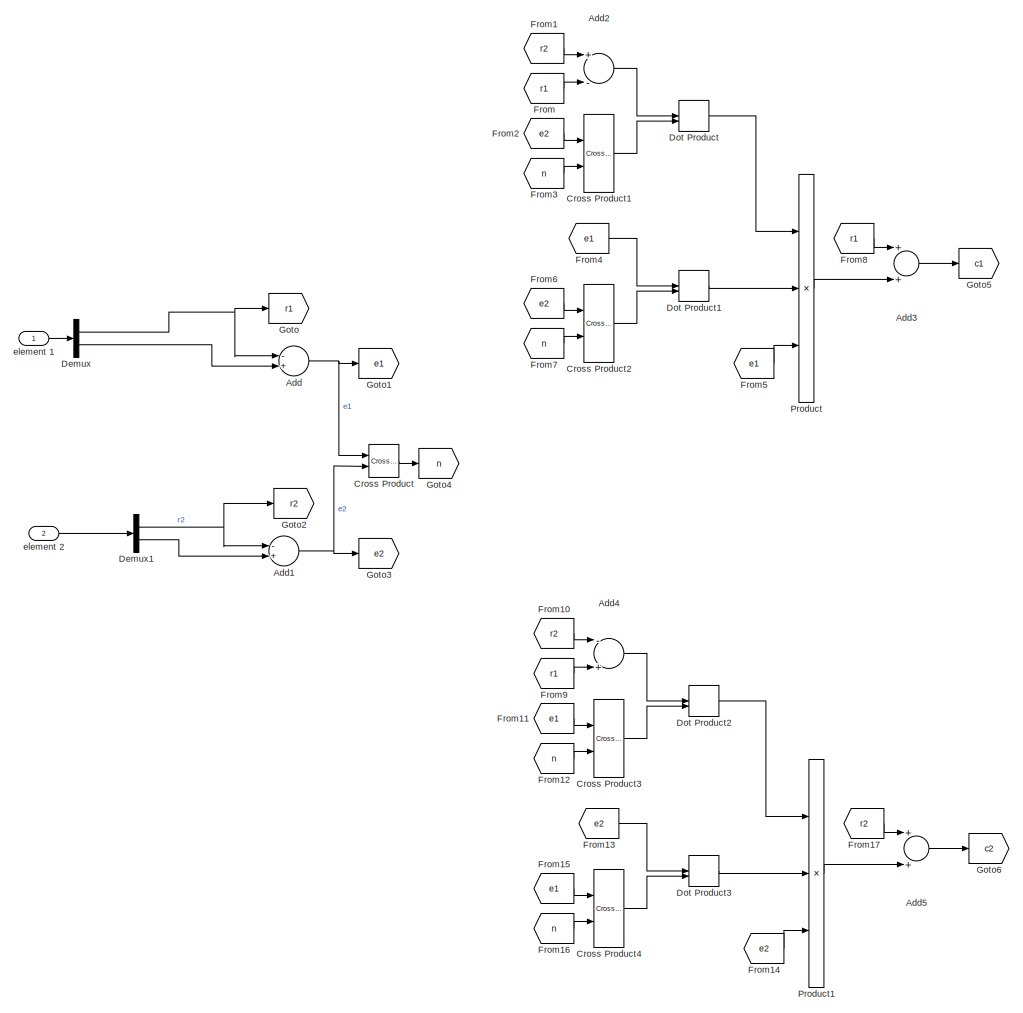
[diagram: Distance between lines - part 1/2, left side, full height]
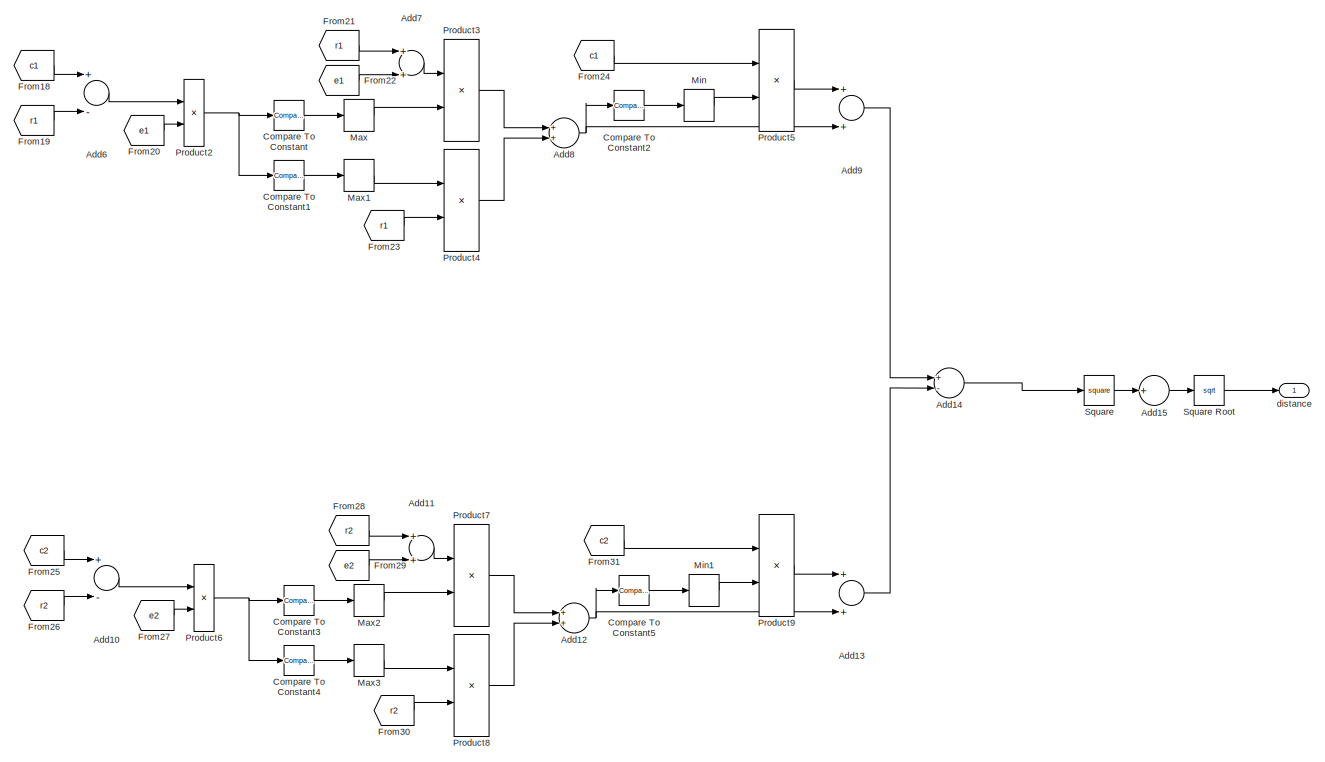
[diagram: Distance between lines - part 2/2, right side, full height]
BLOCK [SubSystem] Distance between lines
  Ports = [2, 1]
  RequestExecContextInheritance = off
BLOCK [Sum] Distance between lines/Add
  InputSameDT = off
  Inputs = -+
  OutDataTypeStr = Inherit: Inherit via internal rule
  Ports = [2, 1]
  SaturateOnIntegerOverflow = off
BLOCK [Sum] Distance between lines/Add1
  InputSameDT = off
  Inputs = -+
  OutDataTypeStr = Inherit: Inherit via internal rule
  Ports = [2, 1]
  SaturateOnIntegerOverflow = off
BLOCK [Sum] Distance between lines/Add10
  InputSameDT = off
  Inputs = +-
  OutDataTypeStr = Inherit: Inherit via internal rule
  Ports = [2, 1]
  SaturateOnIntegerOverflow = off
BLOCK [Sum] Distance between lines/Add11
  InputSameDT = off
  OutDataTypeStr = Inherit: Inherit via internal rule
  Ports = [2, 1]
  SaturateOnIntegerOverflow = off
BLOCK [Sum] Distance between lines/Add12
  InputSameDT = off
  OutDataTypeStr = Inherit: Inherit via internal rule
  Ports = [2, 1]
  SaturateOnIntegerOverflow = off
BLOCK [Sum] Distance between lines/Add13
  InputSameDT = off
  OutDataTypeStr = Inherit: Inherit via internal rule
  Ports = [2, 1]
  SaturateOnIntegerOverflow = off
BLOCK [Sum] Distance between lines/Add14
  InputSameDT = off
  Inputs = +-
  OutDataTypeStr = Inherit: Inherit via internal rule
  Ports = [2, 1]
  SaturateOnIntegerOverflow = off
BLOCK [Sum] Distance between lines/Add15
  CollapseMode = Specified dimension
  InputSameDT = off
  Inputs = +
  OutDataTypeStr = Inherit: Inherit via internal rule
  Ports = [1, 1]
  SaturateOnIntegerOverflow = off
BLOCK [Sum] Distance between lines/Add2
  InputSameDT = off
  Inputs = +-
  OutDataTypeStr = Inherit: Inherit via internal rule
  Ports = [2, 1]
  SaturateOnIntegerOverflow = off
BLOCK [Sum] Distance between lines/Add3
  InputSameDT = off
  OutDataTypeStr = Inherit: Inherit via internal rule
  Ports = [2, 1]
  SaturateOnIntegerOverflow = off
BLOCK [Sum] Distance between lines/Add4
  InputSameDT = off
  Inputs = -+
  OutDataTypeStr = Inherit: Inherit via internal rule
  Ports = [2, 1]
  SaturateOnIntegerOverflow = off
BLOCK [Sum] Distance between lines/Add5
  InputSameDT = off
  OutDataTypeStr = Inherit: Inherit via internal rule
  Ports = [2, 1]
  SaturateOnIntegerOverflow = off
BLOCK [Sum] Distance between lines/Add6
  InputSameDT = off
  Inputs = +-
  OutDataTypeStr = Inherit: Inherit via internal rule
  Ports = [2, 1]
  SaturateOnIntegerOverflow = off
BLOCK [Sum] Distance between lines/Add7
  InputSameDT = off
  OutDataTypeStr = Inherit: Inherit via internal rule
  Ports = [2, 1]
  SaturateOnIntegerOverflow = off
BLOCK [Sum] Distance between lines/Add8
  InputSameDT = off
  OutDataTypeStr = Inherit: Inherit via internal rule
  Ports = [2, 1]
  SaturateOnIntegerOverflow = off
BLOCK [Sum] Distance between lines/Add9
  InputSameDT = off
  OutDataTypeStr = Inherit: Inherit via internal rule
  Ports = [2, 1]
  SaturateOnIntegerOverflow = off
BLOCK [Reference] Distance between lines/Compare To Constant  REF=simulink/Logic and Bit
Operations/Compare
To Constant
  Ports = [1, 1]
  SourceBlock = simulink/Logic and Bit\nOperations/Compare\nTo Constant
  SourceProductBaseCode = SL
  SourceProductName = Simulink
  SourceType = Compare To Constant
BLOCK [Reference] Distance between lines/Compare To Constant1  REF=simulink/Logic and Bit
Operations/Compare
To Constant
  Ports = [1, 1]
  SourceBlock = simulink/Logic and Bit\nOperations/Compare\nTo Constant
  SourceProductBaseCode = SL
  SourceProductName = Simulink
  SourceType = Compare To Constant
BLOCK [Reference] Distance between lines/Compare To Constant2  REF=simulink/Logic and Bit
Operations/Compare
To Constant
  Ports = [1, 1]
  SourceBlock = simulink/Logic and Bit\nOperations/Compare\nTo Constant
  SourceProductBaseCode = SL
  SourceProductName = Simulink
  SourceType = Compare To Constant
BLOCK [Reference] Distance between lines/Compare To Constant3  REF=simulink/Logic and Bit
Operations/Compare
To Constant
  Ports = [1, 1]
  SourceBlock = simulink/Logic and Bit\nOperations/Compare\nTo Constant
  SourceProductBaseCode = SL
  SourceProductName = Simulink
  SourceType = Compare To Constant
BLOCK [Reference] Distance between lines/Compare To Constant4  REF=simulink/Logic and Bit
Operations/Compare
To Constant
  Ports = [1, 1]
  SourceBlock = simulink/Logic and Bit\nOperations/Compare\nTo Constant
  SourceProductBaseCode = SL
  SourceProductName = Simulink
  SourceType = Compare To Constant
BLOCK [Reference] Distance between lines/Compare To Constant5  REF=simulink/Logic and Bit
Operations/Compare
To Constant
  Ports = [1, 1]
  SourceBlock = simulink/Logic and Bit\nOperations/Compare\nTo Constant
  SourceProductBaseCode = SL
  SourceProductName = Simulink
  SourceType = Compare To Constant
BLOCK [Reference] Distance between lines/Cross Product  REF=vrlib/Utilities/Cross Product
  Ports = [2, 1]
  SourceBlock = vrlib/Utilities/Cross Product
  SourceProductBaseCode = SL
  SourceProductName = Simulink
  SourceType = Cross Product
BLOCK [Reference] Distance between lines/Cross Product1  REF=vrlib/Utilities/Cross Product
  Ports = [2, 1]
  SourceBlock = vrlib/Utilities/Cross Product
  SourceProductBaseCode = SL
  SourceProductName = Simulink
  SourceType = Cross Product
BLOCK [Reference] Distance between lines/Cross Product2  REF=vrlib/Utilities/Cross Product
  Ports = [2, 1]
  SourceBlock = vrlib/Utilities/Cross Product
  SourceProductBaseCode = SL
  SourceProductName = Simulink
  SourceType = Cross Product
BLOCK [Reference] Distance between lines/Cross Product3  REF=vrlib/Utilities/Cross Product
  Ports = [2, 1]
  SourceBlock = vrlib/Utilities/Cross Product
  SourceProductBaseCode = SL
  SourceProductName = Simulink
  SourceType = Cross Product
BLOCK [Reference] Distance between lines/Cross Product4  REF=vrlib/Utilities/Cross Product
  Ports = [2, 1]
  SourceBlock = vrlib/Utilities/Cross Product
  SourceProductBaseCode = SL
  SourceProductName = Simulink
  SourceType = Cross Product
BLOCK [Demux] Distance between lines/Demux
  DisplayOption = bar
  Outputs = 2
  Ports = [1, 2]
BLOCK [Demux] Distance between lines/Demux1
  DisplayOption = bar
  Outputs = 2
  Ports = [1, 2]
BLOCK [DotProduct] Distance between lines/Dot Product
  OutDataTypeStr = Inherit: Inherit via internal rule
BLOCK [DotProduct] Distance between lines/Dot Product1
  OutDataTypeStr = Inherit: Inherit via internal rule
BLOCK [DotProduct] Distance between lines/Dot Product2
  OutDataTypeStr = Inherit: Inherit via internal rule
BLOCK [DotProduct] Distance between lines/Dot Product3
  OutDataTypeStr = Inherit: Inherit via internal rule
BLOCK [From] Distance between lines/From
  GotoTag = r1
BLOCK [From] Distance between lines/From1
  GotoTag = r2
BLOCK [From] Distance between lines/From10
  GotoTag = r2
BLOCK [From] Distance between lines/From11
  GotoTag = e1
BLOCK [From] Distance between lines/From12
  GotoTag = n
BLOCK [From] Distance between lines/From13
  GotoTag = e2
BLOCK [From] Distance between lines/From14
  GotoTag = e2
BLOCK [From] Distance between lines/From15
  GotoTag = e1
BLOCK [From] Distance between lines/From16
  GotoTag = n
BLOCK [From] Distance between lines/From17
  GotoTag = r2
BLOCK [From] Distance between lines/From18
  GotoTag = c1
BLOCK [From] Distance between lines/From19
  GotoTag = r1
BLOCK [From] Distance between lines/From2
  GotoTag = e2
BLOCK [From] Distance between lines/From20
  GotoTag = e1
BLOCK [From] Distance between lines/From21
  GotoTag = r1
BLOCK [From] Distance between lines/From22
  GotoTag = e1
BLOCK [From] Distance between lines/From23
  GotoTag = r1
BLOCK [From] Distance between lines/From24
  GotoTag = c1
BLOCK [From] Distance between lines/From25
  GotoTag = c2
BLOCK [From] Distance between lines/From26
  GotoTag = r2
BLOCK [From] Distance between lines/From27
  GotoTag = e2
BLOCK [From] Distance between lines/From28
  GotoTag = r2
BLOCK [From] Distance between lines/From29
  GotoTag = e2
BLOCK [From] Distance between lines/From3
  GotoTag = n
BLOCK [From] Distance between lines/From30
  GotoTag = r2
BLOCK [From] Distance between lines/From31
  GotoTag = c2
BLOCK [From] Distance between lines/From4
  GotoTag = e1
BLOCK [From] Distance between lines/From5
  GotoTag = e1
BLOCK [From] Distance between lines/From6
  GotoTag = e2
BLOCK [From] Distance between lines/From7
  GotoTag = n
BLOCK [From] Distance between lines/From8
  GotoTag = r1
BLOCK [From] Distance between lines/From9
  GotoTag = r1
BLOCK [Goto] Distance between lines/Goto
  GotoTag = r1
BLOCK [Goto] Distance between lines/Goto1
  GotoTag = e1
BLOCK [Goto] Distance between lines/Goto2
  GotoTag = r2
BLOCK [Goto] Distance between lines/Goto3
  GotoTag = e2
BLOCK [Goto] Distance between lines/Goto4
  GotoTag = n
BLOCK [Goto] Distance between lines/Goto5
  GotoTag = c1
BLOCK [Goto] Distance between lines/Goto6
  GotoTag = c2
BLOCK [MinMax] Distance between lines/Max
  InputSameDT = off
  Ports = [1, 1]
  SaturateOnIntegerOverflow = off
BLOCK [MinMax] Distance between lines/Max1
  InputSameDT = off
  Ports = [1, 1]
  SaturateOnIntegerOverflow = off
BLOCK [MinMax] Distance between lines/Max2
  InputSameDT = off
  Ports = [1, 1]
  SaturateOnIntegerOverflow = off
BLOCK [MinMax] Distance between lines/Max3
  InputSameDT = off
  Ports = [1, 1]
  SaturateOnIntegerOverflow = off
BLOCK [MinMax] Distance between lines/Min
  InputSameDT = off
  Ports = [1, 1]
  SaturateOnIntegerOverflow = off
BLOCK [MinMax] Distance between lines/Min1
  InputSameDT = off
  Ports = [1, 1]
  SaturateOnIntegerOverflow = off
BLOCK [Product] Distance between lines/Product
  InputSameDT = off
  Inputs = */*
  OutDataTypeStr = Inherit: Inherit via internal rule
  Ports = [3, 1]
  RndMeth = Floor
  SaturateOnIntegerOverflow = off
BLOCK [Product] Distance between lines/Product1
  InputSameDT = off
  Inputs = */*
  OutDataTypeStr = Inherit: Inherit via internal rule
  Ports = [3, 1]
  RndMeth = Floor
  SaturateOnIntegerOverflow = off
BLOCK [Product] Distance between lines/Product2
  InputSameDT = off
  Inputs = */
  OutDataTypeStr = Inherit: Inherit via internal rule
  Ports = [2, 1]
  RndMeth = Floor
  SaturateOnIntegerOverflow = off
BLOCK [Product] Distance between lines/Product3
  InputSameDT = off
  OutDataTypeStr = Inherit: Inherit via internal rule
  Ports = [2, 1]
  RndMeth = Floor
  SaturateOnIntegerOverflow = off
BLOCK [Product] Distance between lines/Product4
  InputSameDT = off
  OutDataTypeStr = Inherit: Inherit via internal rule
  Ports = [2, 1]
  RndMeth = Floor
  SaturateOnIntegerOverflow = off
BLOCK [Product] Distance between lines/Product5
  InputSameDT = off
  OutDataTypeStr = Inherit: Inherit via internal rule
  Ports = [2, 1]
  RndMeth = Floor
  SaturateOnIntegerOverflow = off
BLOCK [Product] Distance between lines/Product6
  InputSameDT = off
  Inputs = */
  OutDataTypeStr = Inherit: Inherit via internal rule
  Ports = [2, 1]
  RndMeth = Floor
  SaturateOnIntegerOverflow = off
BLOCK [Product] Distance between lines/Product7
  InputSameDT = off
  OutDataTypeStr = Inherit: Inherit via internal rule
  Ports = [2, 1]
  RndMeth = Floor
  SaturateOnIntegerOverflow = off
BLOCK [Product] Distance between lines/Product8
  InputSameDT = off
  OutDataTypeStr = Inherit: Inherit via internal rule
  Ports = [2, 1]
  RndMeth = Floor
  SaturateOnIntegerOverflow = off
BLOCK [Product] Distance between lines/Product9
  InputSameDT = off
  OutDataTypeStr = Inherit: Inherit via internal rule
  Ports = [2, 1]
  RndMeth = Floor
  SaturateOnIntegerOverflow = off
BLOCK [Math] Distance between lines/Square
  Operator = square
  Ports = [1, 1]
  SignedPower = off
BLOCK [Sqrt] Distance between lines/Square Root
BLOCK [Outport] Distance between lines/distance
  IconDisplay = Port number
BLOCK [Inport] Distance between lines/element 1
  IconDisplay = Port number
BLOCK [Inport] Distance between lines/element 2
  IconDisplay = Port number
  Port = 2
BLOCK [SubSystem] Gyroscope sensor
  Ports = [0, 1, 0, 0, 0, 1]
  RequestExecContextInheritance = off
BLOCK [Outport] Gyroscope sensor/Angular velocity
  IconDisplay = Port number
BLOCK [PMIOPort] Gyroscope sensor/Frame
  Side = Left
BLOCK [Reference] Gyroscope sensor/Gyroscope sensor  REF=sm_lib/Frames and
Transforms/Transform
Sensor
  Ports = [0, 0, 0, 0, 0, 1, 4]
  SourceBlock = sm_lib/Frames and\nTransforms/Transform\nSensor
  SourceProductBaseCode = MS
  SourceProductName = Simscape Multibody
  SourceType = Transform\nSensor
BLOCK [Mux] Gyroscope sensor/Mux
  DisplayOption = bar
  Inputs = 3
  Ports = [3, 1]
BLOCK [Reference] Gyroscope sensor/PS-Simulink Converter  REF=nesl_utility/PS-Simulink
Converter
  Ports = [0, 1, 0, 0, 0, 1]
  SourceBlock = nesl_utility/PS-Simulink\nConverter
  SourceProductBaseCode = SS
  SourceProductName = Simscape
  SourceType = PS-Simulink\nConverter
BLOCK [Reference] Gyroscope sensor/PS-Simulink Converter1  REF=nesl_utility/PS-Simulink
Converter
  Ports = [0, 1, 0, 0, 0, 1]
  SourceBlock = nesl_utility/PS-Simulink\nConverter
  SourceProductBaseCode = SS
  SourceProductName = Simscape
  SourceType = PS-Simulink\nConverter
BLOCK [Reference] Gyroscope sensor/PS-Simulink Converter2  REF=nesl_utility/PS-Simulink
Converter
  Ports = [0, 1, 0, 0, 0, 1]
  SourceBlock = nesl_utility/PS-Simulink\nConverter
  SourceProductBaseCode = SS
  SourceProductName = Simscape
  SourceType = PS-Simulink\nConverter
BLOCK [Reference] Gyroscope sensor/World Frame  REF=sm_lib/Frames and
Transforms/World Frame
  Ports = [0, 0, 0, 0, 0, 0, 1]
  SourceBlock = sm_lib/Frames and\nTransforms/World Frame
  SourceProductBaseCode = MS
  SourceProductName = Simscape Multibody
  SourceType = World Frame
BLOCK [ZeroOrderHold] Gyroscope sensor/Zero-Order Hold
  SampleTime = tsZOH
BLOCK [Inport] In1
  IconDisplay = Port number
BLOCK [SubSystem] Low-level Controller
  Ports = [2, 1, 1]
  RequestExecContextInheritance = off
BLOCK [Sum] Low-level Controller/Add1
  InputSameDT = off
  Inputs = +-
  OutDataTypeStr = Inherit: Inherit via internal rule
  Ports = [2, 1]
  SaturateOnIntegerOverflow = off
BLOCK [Sum] Low-level Controller/Add2
  InputSameDT = off
  OutDataTypeStr = Inherit: Inherit via internal rule
  Ports = [2, 1]
  SaturateOnIntegerOverflow = off
BLOCK [EnablePort] Low-level Controller/Enable
  Ports = []
  StatesWhenEnabling = reset
BLOCK [Integrator] Low-level Controller/Integrator1
  Ports = [1, 1]
BLOCK [Gain] Low-level Controller/Multiply1
  Gain = KiGamma
  OutDataTypeStr = Inherit: Inherit via internal rule
  ParamDataTypeStr = Inherit: Inherit via internal rule
  SaturateOnIntegerOverflow = off
BLOCK [Gain] Low-level Controller/Multiply5
  Gain = KpGamma
  OutDataTypeStr = Inherit: Inherit via internal rule
  ParamDataTypeStr = Inherit: Inherit via internal rule
  SaturateOnIntegerOverflow = off
BLOCK [Saturate] Low-level Controller/Saturation
  InputPortMap = u0
  LowerLimit = -maxGammadot
  Ports = [1, 1]
  UpperLimit = maxGammadot
  ZeroCross = off
BLOCK [Inport] Low-level Controller/gammadot
  IconDisplay = Port number
  Port = 2
BLOCK [Inport] Low-level Controller/gammadot ref
  IconDisplay = Port number
BLOCK [Outport] Low-level Controller/torque
  IconDisplay = Port number
  InitialOutput = [0]
  OutputWhenDisabled = reset
BLOCK [SubSystem] Obstacle
  Ports = [1, 0, 0, 0, 0, 5]
  RequestExecContextInheritance = off
BLOCK [PMIOPort] Obstacle/Ball+ top
  Port = 2
  Side = Left
BLOCK [PMIOPort] Obstacle/Ball- top
  Side = Left
BLOCK [Reference] Obstacle/Brick Solid  REF=sm_lib/Body Elements/Brick Solid
  Ports = [0, 0, 0, 0, 0, 0, 1]
  SourceBlock = sm_lib/Body Elements/Brick Solid
  SourceProductBaseCode = MS
  SourceProductName = Simscape Multibody
  SourceType = Brick Solid
BLOCK [Reference] Obstacle/Contact Model 3D  REF=$bdroot/Contact Model 3D
  Ports = [1, 2, 0, 0, 0, 2]
  SourceBlock = $bdroot/Contact Model 3D
  SourceType = SubSystem
BLOCK [Reference] Obstacle/Contact Model 3D1  REF=$bdroot/Contact Model 3D
  Ports = [1, 2, 0, 0, 0, 2]
  SourceBlock = $bdroot/Contact Model 3D
  SourceType = SubSystem
BLOCK [Reference] Obstacle/Contact Model 3D2  REF=$bdroot/Contact Model 3D
  Ports = [1, 2, 0, 0, 0, 2]
  SourceBlock = $bdroot/Contact Model 3D
  SourceType = SubSystem
BLOCK [Reference] Obstacle/Contact Model 3D3  REF=$bdroot/Contact Model 3D
  Ports = [1, 2, 0, 0, 0, 2]
  SourceBlock = $bdroot/Contact Model 3D
  SourceType = SubSystem
BLOCK [PMIOPort] Obstacle/Foot Ball+
  Port = 4
  Side = Left
BLOCK [PMIOPort] Obstacle/Foot Ball-
  Port = 3
  Side = Left
BLOCK [Mux] Obstacle/Mux
  DisplayOption = bar
  Ports = [4, 1]
BLOCK [Reference] Obstacle/Rigid Transform  REF=sm_lib/Frames and
Transforms/Rigid
Transform
  Ports = [0, 0, 0, 0, 0, 1, 1]
  SourceBlock = sm_lib/Frames and\nTransforms/Rigid\nTransform
  SourceProductBaseCode = MS
  SourceProductName = Simscape Multibody
  SourceType = Rigid\nTransform
BLOCK [Inport] Obstacle/Stance?
  IconDisplay = Port number
BLOCK [ToWorkspace] Obstacle/To Workspace1
  MaxDataPoints = inf
  Ports = [1]
  SampleTime = dt_visual
  SaveFormat = Structure With Time
  VariableName = ObstacleForce
BLOCK [PMIOPort] Obstacle/World
  Port = 5
  Side = Left
BLOCK [Reference] Right Leg Angle//Length  REF=NeuroMuscularLibrary/Leg Angle//Length
  Ports = [0, 2, 0, 0, 0, 2]
  SourceBlock = NeuroMuscularLibrary/Leg Angle//Length
  SourceType = SubSystem
BLOCK [SubSystem] Self collision detector
  Ports = [7, 2]
  RequestExecContextInheritance = off
BLOCK [DataTypeConversion] Self collision detector/Cast To Double
  OutDataTypeStr = double
  RndMeth = Floor
  SaturateOnIntegerOverflow = off
BLOCK [DataTypeConversion] Self collision detector/Cast To Double1
  OutDataTypeStr = double
  RndMeth = Floor
  SaturateOnIntegerOverflow = off
BLOCK [Reference] Self collision detector/Compare To Constant  REF=simulink/Logic and Bit
Operations/Compare
To Constant
  Ports = [1, 1]
  SourceBlock = simulink/Logic and Bit\nOperations/Compare\nTo Constant
  SourceProductBaseCode = SL
  SourceProductName = Simulink
  SourceType = Compare To Constant
BLOCK [Reference] Self collision detector/Distance between Lthigh Rshank  REF=$bdroot/Distance between lines
  Ports = [2, 1]
  SourceBlock = $bdroot/Distance between lines
  SourceType = SubSystem
BLOCK [Reference] Self collision detector/Distance between Rthigh Lshank  REF=$bdroot/Distance between lines
  Ports = [2, 1]
  SourceBlock = $bdroot/Distance between lines
  SourceType = SubSystem
BLOCK [Reference] Self collision detector/Distance between shanks  REF=$bdroot/Distance between lines
  Ports = [2, 1]
  SourceBlock = $bdroot/Distance between lines
  SourceType = SubSystem
BLOCK [Reference] Self collision detector/Distance between thighs  REF=$bdroot/Distance between lines
  Ports = [2, 1]
  SourceBlock = $bdroot/Distance between lines
  SourceType = SubSystem
BLOCK [Outport] Self collision detector/Distances
  IconDisplay = Port number
BLOCK [From] Self collision detector/From
  GotoTag = Lthigh
BLOCK [From] Self collision detector/From1
  GotoTag = Rthigh
BLOCK [From] Self collision detector/From2
  GotoTag = Rshank
BLOCK [From] Self collision detector/From3
  GotoTag = Lshank
BLOCK [From] Self collision detector/From4
  GotoTag = Lthigh
BLOCK [From] Self collision detector/From5
  GotoTag = Rshank
BLOCK [From] Self collision detector/From6
  GotoTag = Lshank
BLOCK [From] Self collision detector/From7
  GotoTag = Rthigh
BLOCK [Goto] Self collision detector/Goto1
  GotoTag = Lthigh
BLOCK [Goto] Self collision detector/Goto2
  GotoTag = Lshank
BLOCK [Goto] Self collision detector/Goto3
  GotoTag = Rthigh
BLOCK [Goto] Self collision detector/Goto4
  GotoTag = Rshank
BLOCK [Inport] Self collision detector/Left ankle pos
  IconDisplay = Port number
  Port = 3
BLOCK [Inport] Self collision detector/Left hip PosVel
  IconDisplay = Port number
BLOCK [Inport] Self collision detector/Left knee pos
  IconDisplay = Port number
  Port = 2
BLOCK [Outport] Self collision detector/Limb contact?
  IconDisplay = Port number
  Port = 2
BLOCK [MinMax] Self collision detector/Max
  Function = max
  InputSameDT = off
  Ports = [1, 1]
  SaturateOnIntegerOverflow = off
BLOCK [Mux] Self collision detector/Mux
  DisplayOption = bar
  Inputs = [3 3]
  Ports = [2, 1]
BLOCK [Mux] Self collision detector/Mux1
  DisplayOption = bar
  Inputs = [3 3]
  Ports = [2, 1]
BLOCK [Mux] Self collision detector/Mux2
  DisplayOption = bar
  Inputs = [3 3]
  Ports = [2, 1]
BLOCK [Mux] Self collision detector/Mux3
  DisplayOption = bar
  Inputs = [3 3]
  Ports = [2, 1]
BLOCK [Mux] Self collision detector/Mux4
  DisplayOption = bar
  Ports = [4, 1]
BLOCK [Inport] Self collision detector/Past init steps?
  IconDisplay = Port number
  Port = 7
BLOCK [Product] Self collision detector/Product
  InputSameDT = off
  OutDataTypeStr = Inherit: Inherit via internal rule
  Ports = [2, 1]
  RndMeth = Floor
  SaturateOnIntegerOverflow = off
BLOCK [Inport] Self collision detector/Right ankle pos
  IconDisplay = Port number
  Port = 6
BLOCK [Inport] Self collision detector/Right hip PosVel
  IconDisplay = Port number
  Port = 4
BLOCK [Inport] Self collision detector/Right knee pos
  IconDisplay = Port number
  Port = 5
BLOCK [Selector] Self collision detector/Selector
  IndexOptions = Index vector (dialog)
  Indices = [1 2 3]
  InputPortWidth = 6
  OutputSizes = 1
  Ports = [1, 1]
BLOCK [Selector] Self collision detector/Selector1
  IndexOptions = Index vector (dialog)
  Indices = [1 2 3]
  InputPortWidth = 6
  OutputSizes = 1
  Ports = [1, 1]
BLOCK [SubSystem] Swing Phase CMG
  Ports = [6, 1]
  RequestExecContextInheritance = off
BLOCK [Sum] Swing Phase CMG/Add
  InputSameDT = off
  OutDataTypeStr = Inherit: Inherit via internal rule
  Ports = [2, 1]
  SaturateOnIntegerOverflow = off
BLOCK [SubSystem] Swing Phase CMG/Chart
  ErrorFcn = Stateflow.Translate.translate
  PermitHierarchicalResolution = ExplicitOnly
  Ports = [4, 3]
  RequestExecContextInheritance = off
  SFBlockType = Chart
  TreatAsAtomicUnit = on
BLOCK [Demux] Swing Phase CMG/Chart/ Demux 
  Outputs = 1
  Ports = [1, 1]
BLOCK [S-Function] Swing Phase CMG/Chart/ SFunction 
  EnableBusSupport = off
  FunctionName = sf_sfun
  Parameters = legLengthClr
  PortCounts = [4 4]
  Ports = [4, 4]
  SFcnIsStateOwnerBlock = off
  SFunctionDeploymentMode = off
  Tag = Stateflow S-Function 6
BLOCK [Terminator] Swing Phase CMG/Chart/ Terminator 
BLOCK [Inport] Swing Phase CMG/Chart/Stance
  IconDisplay = Port number
BLOCK [Inport] Swing Phase CMG/Chart/contraStance
  IconDisplay = Port number
  Port = 2
BLOCK [Outport] Swing Phase CMG/Chart/extend
  IconDisplay = Port number
  Port = 3
BLOCK [Outport] Swing Phase CMG/Chart/flex
  IconDisplay = Port number
BLOCK [Inport] Swing Phase CMG/Chart/legAngleSpeed
  IconDisplay = Port number
  Port = 3
BLOCK [Inport] Swing Phase CMG/Chart/legLength
  IconDisplay = Port number
  Port = 4
BLOCK [Outport] Swing Phase CMG/Chart/stop
  IconDisplay = Port number
  Port = 2
BLOCK [Outport] Swing Phase CMG/Desired Knee torque
  IconDisplay = Port number
BLOCK [SubSystem] Swing Phase CMG/Filtered Derivative
  Ports = [1, 1]
  RequestExecContextInheritance = off
BLOCK [Gain] Swing Phase CMG/Filtered Derivative/Filter Coeff
  Gain = legAngleFilter
  OutDataTypeStr = Inherit: Inherit via internal rule
  ParamDataTypeStr = Inherit: Inherit via internal rule
  SaturateOnIntegerOverflow = off
BLOCK [Inport] Swing Phase CMG/Filtered Derivative/In1
  IconDisplay = Port number
BLOCK [Integrator] Swing Phase CMG/Filtered Derivative/Integrator
  Ports = [1, 1]
  ZeroCross = off
BLOCK [Outport] Swing Phase CMG/Filtered Derivative/Out1
  IconDisplay = Port number
BLOCK [Sum] Swing Phase CMG/Filtered Derivative/Sum4
  IconShape = round
  InputSameDT = off
  Inputs = |+-
  OutDataTypeStr = Inherit: Inherit via internal rule
  Ports = [2, 1]
  SaturateOnIntegerOverflow = off
BLOCK [SubSystem] Swing Phase CMG/Knee Flex
  Ports = [2, 1, 1]
  RequestExecContextInheritance = off
  TreatAsAtomicUnit = on
BLOCK [Gain] Swing Phase CMG/Knee Flex/ 1
  Gain = kneeFlexPosGain
  OutDataTypeStr = Inherit: Inherit via internal rule
  ParamDataTypeStr = Inherit: Inherit via internal rule
  SaturateOnIntegerOverflow = off
BLOCK [Gain] Swing Phase CMG/Knee Flex/ 4
  Gain = kneeFlexSpeedGain
  OutDataTypeStr = Inherit: Inherit via internal rule
  ParamDataTypeStr = Inherit: Inherit via internal rule
  SaturateOnIntegerOverflow = off
BLOCK [Sum] Swing Phase CMG/Knee Flex/Add
  InputSameDT = off
  Inputs = +-
  OutDataTypeStr = Inherit: Inherit via internal rule
  Ports = [2, 1]
  SaturateOnIntegerOverflow = off
BLOCK [Sum] Swing Phase CMG/Knee Flex/Add1
  InputSameDT = off
  Inputs = -+
  OutDataTypeStr = Inherit: Inherit via internal rule
  Ports = [2, 1]
  SaturateOnIntegerOverflow = off
BLOCK [Constant] Swing Phase CMG/Knee Flex/Constant
  Value = TargetLegAngleTripFlex
BLOCK [EnablePort] Swing Phase CMG/Knee Flex/Enable
  Ports = []
  StatesWhenEnabling = reset
  ZeroCross = off
BLOCK [Inport] Swing Phase CMG/Knee Flex/Leg Angle
  IconDisplay = Port number
BLOCK [Inport] Swing Phase CMG/Knee Flex/LegAngleSpeed
  IconDisplay = Port number
  Port = 2
BLOCK [Saturate] Swing Phase CMG/Knee Flex/Saturation
  InputPortMap = u0
  LowerLimit = -inf
  Ports = [1, 1]
  UpperLimit = 0
  ZeroCross = off
BLOCK [Outport] Swing Phase CMG/Knee Flex/tau
  IconDisplay = Port number
  InitialOutput = 0
  OutputWhenDisabled = reset
BLOCK [Inport] Swing Phase CMG/Knee Speed
  IconDisplay = Port number
  Port = 5
BLOCK [SubSystem] Swing Phase CMG/Knee Stop
  Ports = [5, 1, 1]
  RequestExecContextInheritance = off
  TreatAsAtomicUnit = on
BLOCK [Sum] Swing Phase CMG/Knee Stop/Add
  InputSameDT = off
  OutDataTypeStr = Inherit: Inherit via internal rule
  Ports = [2, 1]
  SaturateOnIntegerOverflow = off
BLOCK [Sum] Swing Phase CMG/Knee Stop/Add5
  InputSameDT = off
  Inputs = -+
  OutDataTypeStr = Inherit: Inherit via internal rule
  Ports = [2, 1]
  SaturateOnIntegerOverflow = off
BLOCK [Sum] Swing Phase CMG/Knee Stop/Add6
  InputSameDT = off
  Inputs = +-
  OutDataTypeStr = Inherit: Inherit via internal rule
  Ports = [2, 1]
  SaturateOnIntegerOverflow = off
BLOCK [Constant] Swing Phase CMG/Knee Stop/Constant10
BLOCK [Constant] Swing Phase CMG/Knee Stop/Constant11
  Value = legAngleSpeedMax
BLOCK [Constant] Swing Phase CMG/Knee Stop/Constant12
  Value = -kneeExtendGain
BLOCK [Constant] Swing Phase CMG/Knee Stop/Constant13
  Value = shankLength + thighLength
BLOCK [Constant] Swing Phase CMG/Knee Stop/Constant9
  Value = kneeStopGain
BLOCK [Product] Swing Phase CMG/Knee Stop/Divide
  InputSameDT = off
  Inputs = */
  OutDataTypeStr = Inherit: Inherit via internal rule
  Ports = [2, 1]
  RndMeth = Floor
  SaturateOnIntegerOverflow = off
BLOCK [Product] Swing Phase CMG/Knee Stop/Divide1
  InputSameDT = off
  Inputs = ***
  OutDataTypeStr = Inherit: Inherit via internal rule
  Ports = [3, 1]
  RndMeth = Floor
  SaturateOnIntegerOverflow = off
BLOCK [EnablePort] Swing Phase CMG/Knee Stop/Enable
  Ports = []
  StatesWhenEnabling = reset
  ZeroCross = off
BLOCK [Inport] Swing Phase CMG/Knee Stop/Extend?
  IconDisplay = Port number
  Port = 5
BLOCK [Inport] Swing Phase CMG/Knee Stop/Leg Length
  IconDisplay = Port number
  Port = 4
BLOCK [Product] Swing Phase CMG/Knee Stop/Product4
  InputSameDT = off
  Inputs = 5
  OutDataTypeStr = Inherit: Inherit via internal rule
  Ports = [5, 1]
  RndMeth = Floor
  SaturateOnIntegerOverflow = off
BLOCK [RelationalOperator] Swing Phase CMG/Knee Stop/Relational Operator1
  InputSameDT = off
  Operator = <
  OutDataTypeStr = boolean
  Ports = [2, 1]
  ZeroCross = off
BLOCK [RelationalOperator] Swing Phase CMG/Knee Stop/Relational Operator2
  InputSameDT = off
  Operator = <
  OutDataTypeStr = boolean
  Ports = [2, 1]
  ZeroCross = off
BLOCK [Saturate] Swing Phase CMG/Knee Stop/Saturation
  InputPortMap = u0
  LowerLimit = 0
  Ports = [1, 1]
  UpperLimit = inf
  ZeroCross = off
BLOCK [Sum] Swing Phase CMG/Knee Stop/Sum2
  IconShape = round
  InputSameDT = off
  Inputs = ++|
  OutDataTypeStr = Inherit: Inherit via internal rule
  Ports = [2, 1]
  SaturateOnIntegerOverflow = off
BLOCK [Sum] Swing Phase CMG/Knee Stop/Sum5
  IconShape = round
  InputSameDT = off
  Inputs = |-+
  OutDataTypeStr = Inherit: Inherit via internal rule
  Ports = [2, 1]
  SaturateOnIntegerOverflow = off
BLOCK [Constant] Swing Phase CMG/Knee Stop/leg angle Threshold
  Value = deltaLegAngleThr
BLOCK [Inport] Swing Phase CMG/Knee Stop/legAngle
  IconDisplay = Port number
  Port = 2
BLOCK [Inport] Swing Phase CMG/Knee Stop/legAngleSpeed
  IconDisplay = Port number
BLOCK [Inport] Swing Phase CMG/Knee Stop/legAngleTgt
  IconDisplay = Port number
  Port = 3
BLOCK [Outport] Swing Phase CMG/Knee Stop/tau
  IconDisplay = Port number
  InitialOutput = 0
  OutputWhenDisabled = reset
BLOCK [Inport] Swing Phase CMG/Leg Angle
  IconDisplay = Port number
BLOCK [Inport] Swing Phase CMG/Leg Length
  IconDisplay = Port number
  Port = 2
BLOCK [Inport] Swing Phase CMG/Stance?
  IconDisplay = Port number
  Port = 3
BLOCK [Inport] Swing Phase CMG/Target Leg Angle
  IconDisplay = Port number
  Port = 6
BLOCK [SubSystem] Swing Phase CMG/Wait 100 ms to enable
  Ports = [1, 1]
  RequestExecContextInheritance = off
BLOCK [Clock] Swing Phase CMG/Wait 100 ms to enable/Clock
BLOCK [Reference] Swing Phase CMG/Wait 100 ms to enable/Compare To Constant  REF=simulink/Logic and Bit
Operations/Compare
To Constant
  Ports = [1, 1]
  SourceBlock = simulink/Logic and Bit\nOperations/Compare\nTo Constant
  SourceProductBaseCode = SL
  SourceProductName = Simulink
  SourceType = Compare To Constant
BLOCK [Inport] Swing Phase CMG/Wait 100 ms to enable/In1
  IconDisplay = Port number
BLOCK [Outport] Swing Phase CMG/Wait 100 ms to enable/Out1
  IconDisplay = Port number
BLOCK [Product] Swing Phase CMG/Wait 100 ms to enable/Product6
  InputSameDT = off
  OutDataTypeStr = Inherit: Inherit via internal rule
  Ports = [2, 1]
  RndMeth = Floor
  SaturateOnIntegerOverflow = off
BLOCK [Inport] Swing Phase CMG/contraStance?
  IconDisplay = Port number
  Port = 4
BLOCK [SubSystem] Trip Detector
  Ports = [3, 2]
  RequestExecContextInheritance = off
BLOCK [Outport] Trip Detector/Acceleration Magnitude
  IconDisplay = Port number
  Port = 2
BLOCK [SubSystem] Trip Detector/Chart
  ErrorFcn = Stateflow.Translate.translate
  PermitHierarchicalResolution = ExplicitOnly
  Ports = [4, 1]
  RequestExecContextInheritance = off
  SFBlockType = Chart
  TreatAsAtomicUnit = on
BLOCK [Demux] Trip Detector/Chart/ Demux 
  Outputs = 1
  Ports = [1, 1]
BLOCK [S-Function] Trip Detector/Chart/ SFunction 
  EnableBusSupport = on
  FunctionName = sf_sfun
  PortCounts = [4 2]
  Ports = [4, 2]
  SFcnIsStateOwnerBlock = off
  SFunctionDeploymentMode = off
  Tag = Stateflow S-Function 1
BLOCK [Terminator] Trip Detector/Chart/ Terminator 
BLOCK [Outport] Trip Detector/Chart/Active
  IconDisplay = Port number
BLOCK [Inport] Trip Detector/Chart/Stance
  IconDisplay = Port number
BLOCK [Inport] Trip Detector/Chart/Tripped
  IconDisplay = Port number
  Port = 2
BLOCK [Inport] Trip Detector/Chart/time
  IconDisplay = Port number
  Port = 3
BLOCK [Inport] Trip Detector/Chart/trippedOnce
  IconDisplay = Port number
  Port = 4
BLOCK [Reference] Trip Detector/Compare To Constant  REF=simulink/Logic and Bit
Operations/Compare
To Constant
  Ports = [1, 1]
  SourceBlock = simulink/Logic and Bit\nOperations/Compare\nTo Constant
  SourceProductBaseCode = SL
  SourceProductName = Simulink
  SourceType = Compare To Constant
BLOCK [Constant] Trip Detector/Constant
BLOCK [Delay] Trip Detector/Delay One Step
  DelayLength = 1
  InputPortMap = u0
  Ports = [1, 1]
BLOCK [Math] Trip Detector/Math Function
  Operator = magnitude^2
  Ports = [1, 1]
  SignedPower = off
BLOCK [Memory] Trip Detector/Memory
  InheritSampleTime = on
  LinearizeAsDelay = on
  LinearizeMemory = on
BLOCK [Mux] Trip Detector/Mux
  DisplayOption = bar
  Inputs = 3
  Ports = [3, 1]
BLOCK [Inport] Trip Detector/Other Stance
  IconDisplay = Port number
BLOCK [Reference] Trip Detector/Sample and Hold  REF=dspsigops/Sample
and Hold
  Ports = [1, 1, 0, 1]
  SourceBlock = dspsigops/Sample\nand Hold
  SourceProductBaseCode = DS
  SourceProductName = DSP System Toolbox
  SourceType = Sample and Hold
BLOCK [Selector] Trip Detector/Selector
  IndexOptions = Index vector (dialog)
  Indices = [1 2]
  InputPortWidth = 3
  OutputSizes = 1
  Ports = [1, 1]
BLOCK [Inport] Trip Detector/ShankAcc
  IconDisplay = Port number
  Port = 2
BLOCK [Sqrt] Trip Detector/Square Root
BLOCK [Sum] Trip Detector/Sum of Elements
  CollapseDim = 2
  InputSameDT = off
  Inputs = +
  OutDataTypeStr = Inherit: Inherit via internal rule
  Ports = [1, 1]
  SaturateOnIntegerOverflow = off
BLOCK [ToWorkspace] Trip Detector/To Workspace13
  MaxDataPoints = inf
  Ports = [1]
  SampleTime = -1
  SaveFormat = Structure With Time
  VariableName = tripDetectorData
BLOCK [Outport] Trip Detector/Trip reaction Active?
  IconDisplay = Port number
BLOCK [Inport] Trip Detector/time
  IconDisplay = Port number
  Port = 3
ANNOTATION Contact Model 3D: 3D Ground Interaction Model
ANNOTATION Swing Phase CMG/Knee Stop: Knee Extend Torque
LINE Accelerometer/Highpass Filter1:1 -> Accelerometer/Lowpass Filter1:1
LINE Accelerometer/Highpass Filter2:1 -> Accelerometer/Lowpass Filter2:1
LINE Accelerometer/Highpass Filter:1 -> Accelerometer/Lowpass Filter:1
LINE Accelerometer/Lowpass Filter1:1 -> Accelerometer/Mux1:2
LINE Accelerometer/Lowpass Filter2:1 -> Accelerometer/Mux1:3
LINE Accelerometer/Lowpass Filter:1 -> Accelerometer/Mux1:1
LINE Accelerometer/Mux1:1 -> Accelerometer/Acceleration Filtered:1
LINE Accelerometer/Mux:1 -> Accelerometer/Acceleration:1
NET Accelerometer/PS-Simulink Converter1:1 -> Accelerometer/Mux:2, Accelerometer/Zero-Order Hold1:1
NET Accelerometer/PS-Simulink Converter2:1 -> Accelerometer/Mux:3, Accelerometer/Zero-Order Hold2:1
NET Accelerometer/PS-Simulink Converter:1 -> Accelerometer/Mux:1, Accelerometer/Zero-Order Hold:1
LINE Accelerometer/Zero-Order Hold1:1 -> Accelerometer/Highpass Filter1:1
LINE Accelerometer/Zero-Order Hold2:1 -> Accelerometer/Highpass Filter2:1
LINE Accelerometer/Zero-Order Hold:1 -> Accelerometer/Highpass Filter:1
LINE CMG inactive just weight/Constant3:1 -> CMG inactive just weight/CMGData:1
LINE CMG inactive just weight/Intact Stance:1 -> CMG inactive just weight/Terminator3:1
LINE CMG inactive just weight/Prosthetic Knee velocity:1 -> CMG inactive just weight/Terminator2:1
LINE CMG inactive just weight/Prosthetic LegAngle:1 -> CMG inactive just weight/Terminator6:1
LINE CMG inactive just weight/Prosthetic LegLength:1 -> CMG inactive just weight/Terminator5:1
LINE CMG inactive just weight/Prosthetic Shank angular velocity:1 -> CMG inactive just weight/Terminator7:1
LINE CMG inactive just weight/Prosthetic Stance:1 -> CMG inactive just weight/Terminator4:1
LINE CMG inactive just weight/Prosthetic TargetLegAngle:1 -> CMG inactive just weight/Terminator1:1
LINE CMG inactive just weight/TripReactionActive?:1 -> CMG inactive just weight/Terminator:1
LINE CMG model and Controller/Add6:1 -> CMG model and Controller/Saturation2:1
LINE CMG model and Controller/Add:1 -> CMG model and Controller/Product2:1
NET CMG model and Controller/Cast To Double1:1 -> CMG model and Controller/Low-level Flywheel controller:1, CMG model and Controller/Round:1
LINE CMG model and Controller/Cast To Double2:1 -> CMG model and Controller/Simulink-PS Converter1:1
NET CMG model and Controller/Cast To Double3:1 -> CMG model and Controller/Goto4:1, CMG model and Controller/Low-level Controller:2
LINE CMG model and Controller/Cast To Double5:1 -> CMG model and Controller/Simulink-PS Converter:1
LINE CMG model and Controller/Constant1:1 -> CMG model and Controller/Product:1
LINE CMG model and Controller/Delta H calculator/Add10:1 -> CMG model and Controller/Delta H calculator/Product8:2
LINE CMG model and Controller/Delta H calculator/Add5:1 -> CMG model and Controller/Delta H calculator/Product7:1
NET CMG model and Controller/Delta H calculator/Constant6:1 -> CMG model and Controller/Delta H calculator/Cos3:1, CMG model and Controller/Delta H calculator/Cos6:1
LINE CMG model and Controller/Delta H calculator/Cos3:1 -> CMG model and Controller/Delta H calculator/Add5:2
LINE CMG model and Controller/Delta H calculator/Cos4:1 -> CMG model and Controller/Delta H calculator/Add10:2
LINE CMG model and Controller/Delta H calculator/Cos5:1 -> CMG model and Controller/Delta H calculator/Add5:1
LINE CMG model and Controller/Delta H calculator/Cos6:1 -> CMG model and Controller/Delta H calculator/Add10:1
NET CMG model and Controller/Delta H calculator/H_mag:1 -> CMG model and Controller/Delta H calculator/Product7:2, CMG model and Controller/Delta H calculator/Product8:1
LINE CMG model and Controller/Delta H calculator/Hypot:1 -> CMG model and Controller/Delta H calculator/Delta H_mag:1
LINE CMG model and Controller/Delta H calculator/Mux3:1 -> CMG model and Controller/Delta H calculator/Delta H components:1
NET CMG model and Controller/Delta H calculator/Product7:1 -> CMG model and Controller/Delta H calculator/Hypot:1, CMG model and Controller/Delta H calculator/Mux3:1
NET CMG model and Controller/Delta H calculator/Product8:1 -> CMG model and Controller/Delta H calculator/Hypot:2, CMG model and Controller/Delta H calculator/Mux3:2
NET CMG model and Controller/Delta H calculator/gamma:1 -> CMG model and Controller/Delta H calculator/Cos4:1, CMG model and Controller/Delta H calculator/Cos5:1
LINE CMG model and Controller/Delta H calculator:1 -> CMG model and Controller/Mux:8
LINE CMG model and Controller/Delta H calculator:2 -> CMG model and Controller/Mux:9
LINE CMG model and Controller/Feed-forward compensation/Add:1 -> CMG model and Controller/Feed-forward compensation/Gimbal motor feed-forward torque:1
LINE CMG model and Controller/Feed-forward compensation/Cast To Double1:1 -> CMG model and Controller/Feed-forward compensation/Product1:3
LINE CMG model and Controller/Feed-forward compensation/Cast To Double7:1 -> CMG model and Controller/Feed-forward compensation/Product2:1
LINE CMG model and Controller/Feed-forward compensation/Cos1:1 -> CMG model and Controller/Feed-forward compensation/Product1:2
LINE CMG model and Controller/Feed-forward compensation/Cos2:1 -> CMG model and Controller/Feed-forward compensation/Product2:2
NET CMG model and Controller/Feed-forward compensation/H_mag:1 -> CMG model and Controller/Feed-forward compensation/Product1:1, CMG model and Controller/Feed-forward compensation/Product2:3
LINE CMG model and Controller/Feed-forward compensation/Product1:1 -> CMG model and Controller/Feed-forward compensation/Add:2
LINE CMG model and Controller/Feed-forward compensation/Product2:1 -> CMG model and Controller/Feed-forward compensation/Add:1
LINE CMG model and Controller/Feed-forward compensation/Selector1:1 -> CMG model and Controller/Feed-forward compensation/Cast To Double7:1
LINE CMG model and Controller/Feed-forward compensation/Selector2:1 -> CMG model and Controller/Feed-forward compensation/Cast To Double1:1
NET CMG model and Controller/Feed-forward compensation/Shank angular velocity:1 -> CMG model and Controller/Feed-forward compensation/Selector1:1, CMG model and Controller/Feed-forward compensation/Selector2:1
NET CMG model and Controller/Feed-forward compensation/gamma:1 -> CMG model and Controller/Feed-forward compensation/Cos1:1, CMG model and Controller/Feed-forward compensation/Cos2:1
NET CMG model and Controller/Feed-forward compensation:1 -> CMG model and Controller/Add6:1, CMG model and Controller/Goto8:1
LINE CMG model and Controller/From10:1 -> CMG model and Controller/Feed-forward compensation:3
LINE CMG model and Controller/From11:1 -> CMG model and Controller/Delta H calculator:2
LINE CMG model and Controller/From12:1 -> CMG model and Controller/Mux5:2
LINE CMG model and Controller/From13:1 -> CMG model and Controller/Mux5:3
LINE CMG model and Controller/From14:1 -> CMG model and Controller/Product2:2
LINE CMG model and Controller/From16:1 -> CMG model and Controller/Mux:7
LINE CMG model and Controller/From17:1 -> CMG model and Controller/Trip controller:8
LINE CMG model and Controller/From18:1 -> CMG model and Controller/Mux5:4
LINE CMG model and Controller/From19:1 -> CMG model and Controller/Gyroscopic Torque on shank calculator:1
LINE CMG model and Controller/From1:1 -> CMG model and Controller/Mux:2
LINE CMG model and Controller/From20:1 -> CMG model and Controller/Gyroscopic Torque on shank calculator:2
LINE CMG model and Controller/From21:1 -> CMG model and Controller/Gyroscopic Torque on shank calculator:3
LINE CMG model and Controller/From22:1 -> CMG model and Controller/Gyroscopic Torque on shank calculator:4
LINE CMG model and Controller/From23:1 -> CMG model and Controller/Gyroscopic Torque on shank calculator:5
LINE CMG model and Controller/From2:1 -> CMG model and Controller/Trip controller:9
LINE CMG model and Controller/From3:1 -> CMG model and Controller/Low-level Controller:enable
LINE CMG model and Controller/From4:1 -> CMG model and Controller/Walk controller:3
LINE CMG model and Controller/From5:1 -> CMG model and Controller/Walk controller:4
LINE CMG model and Controller/From6:1 -> CMG model and Controller/Mux5:1
LINE CMG model and Controller/From7:1 -> CMG model and Controller/Feed-forward compensation:2
LINE CMG model and Controller/From8:1 -> CMG model and Controller/Delta H calculator:1
LINE CMG model and Controller/From9:1 -> CMG model and Controller/Walk controller:enable
LINE CMG model and Controller/From:1 -> CMG model and Controller/Gain2:1
LINE CMG model and Controller/Gain2:1 -> CMG model and Controller/Mux:1
LINE CMG model and Controller/Gyroscopic Torque on shank calculator/Add1:1 -> CMG model and Controller/Gyroscopic Torque on shank calculator/Product4:1
LINE CMG model and Controller/Gyroscopic Torque on shank calculator/Add2:1 -> CMG model and Controller/Gyroscopic Torque on shank calculator/Mux:3
NET CMG model and Controller/Gyroscopic Torque on shank calculator/Add:1 -> CMG model and Controller/Gyroscopic Torque on shank calculator/Product2:3, CMG model and Controller/Gyroscopic Torque on shank calculator/Product3:1
LINE CMG model and Controller/Gyroscopic Torque on shank calculator/Cos:1 -> CMG model and Controller/Gyroscopic Torque on shank calculator/Goto1:1
LINE CMG model and Controller/Gyroscopic Torque on shank calculator/From1:1 -> CMG model and Controller/Gyroscopic Torque on shank calculator/Product3:2
LINE CMG model and Controller/Gyroscopic Torque on shank calculator/From2:1 -> CMG model and Controller/Gyroscopic Torque on shank calculator/Product:2
LINE CMG model and Controller/Gyroscopic Torque on shank calculator/From3:1 -> CMG model and Controller/Gyroscopic Torque on shank calculator/Product1:2
LINE CMG model and Controller/Gyroscopic Torque on shank calculator/From4:1 -> CMG model and Controller/Gyroscopic Torque on shank calculator/Product2:1
LINE CMG model and Controller/Gyroscopic Torque on shank calculator/From5:1 -> CMG model and Controller/Gyroscopic Torque on shank calculator/Product3:3
LINE CMG model and Controller/Gyroscopic Torque on shank calculator/From6:1 -> CMG model and Controller/Gyroscopic Torque on shank calculator/Product4:2
LINE CMG model and Controller/Gyroscopic Torque on shank calculator/From:1 -> CMG model and Controller/Gyroscopic Torque on shank calculator/Product2:2
LINE CMG model and Controller/Gyroscopic Torque on shank calculator/GM torque:1 -> CMG model and Controller/Gyroscopic Torque on shank calculator/Add2:2
LINE CMG model and Controller/Gyroscopic Torque on shank calculator/H mag:1 -> CMG model and Controller/Gyroscopic Torque on shank calculator/Goto2:1
LINE CMG model and Controller/Gyroscopic Torque on shank calculator/Multiply:1 -> CMG model and Controller/Gyroscopic Torque on shank calculator/Mux:2
LINE CMG model and Controller/Gyroscopic Torque on shank calculator/Mux:1 -> CMG model and Controller/Gyroscopic Torque on shank calculator/Gyroscopic Torque on shank:1
LINE CMG model and Controller/Gyroscopic Torque on shank calculator/Product1:1 -> CMG model and Controller/Gyroscopic Torque on shank calculator/Add1:1
LINE CMG model and Controller/Gyroscopic Torque on shank calculator/Product2:1 -> CMG model and Controller/Gyroscopic Torque on shank calculator/Mux:1
LINE CMG model and Controller/Gyroscopic Torque on shank calculator/Product3:1 -> CMG model and Controller/Gyroscopic Torque on shank calculator/Multiply:1
LINE CMG model and Controller/Gyroscopic Torque on shank calculator/Product4:1 -> CMG model and Controller/Gyroscopic Torque on shank calculator/Add2:1
LINE CMG model and Controller/Gyroscopic Torque on shank calculator/Product:1 -> CMG model and Controller/Gyroscopic Torque on shank calculator/Add1:2
LINE CMG model and Controller/Gyroscopic Torque on shank calculator/Selector1:1 -> CMG model and Controller/Gyroscopic Torque on shank calculator/Product1:1
LINE CMG model and Controller/Gyroscopic Torque on shank calculator/Selector2:1 -> CMG model and Controller/Gyroscopic Torque on shank calculator/Product:1
LINE CMG model and Controller/Gyroscopic Torque on shank calculator/Selector:1 -> CMG model and Controller/Gyroscopic Torque on shank calculator/Add:2
NET CMG model and Controller/Gyroscopic Torque on shank calculator/Shank angular velocity:1 -> CMG model and Controller/Gyroscopic Torque on shank calculator/Selector1:1, CMG model and Controller/Gyroscopic Torque on shank calculator/Selector2:1, CMG model and Controller/Gyroscopic Torque on shank calculator/Selector:1
LINE CMG model and Controller/Gyroscopic Torque on shank calculator/Sin:1 -> CMG model and Controller/Gyroscopic Torque on shank calculator/Goto:1
NET CMG model and Controller/Gyroscopic Torque on shank calculator/gamma:1 -> CMG model and Controller/Gyroscopic Torque on shank calculator/Cos:1, CMG model and Controller/Gyroscopic Torque on shank calculator/Sin:1
LINE CMG model and Controller/Gyroscopic Torque on shank calculator/gammadot:1 -> CMG model and Controller/Gyroscopic Torque on shank calculator/Add:1
LINE CMG model and Controller/Gyroscopic Torque on shank calculator:1 -> CMG model and Controller/Mux:11
LINE CMG model and Controller/Intact Stance:1 -> CMG model and Controller/Trip controller:5
NET CMG model and Controller/Low-level Controller:1 -> CMG model and Controller/Add6:3, CMG model and Controller/Goto7:1
LINE CMG model and Controller/Low-level Flywheel controller/Add:1 -> CMG model and Controller/Low-level Flywheel controller/Multiply7:1
LINE CMG model and Controller/Low-level Flywheel controller/Constant:1 -> CMG model and Controller/Low-level Flywheel controller/Add:1
LINE CMG model and Controller/Low-level Flywheel controller/Multiply7:1 -> CMG model and Controller/Low-level Flywheel controller/Saturation1:1
LINE CMG model and Controller/Low-level Flywheel controller/Omega:1 -> CMG model and Controller/Low-level Flywheel controller/Add:2
LINE CMG model and Controller/Low-level Flywheel controller/Saturation1:1 -> CMG model and Controller/Low-level Flywheel controller/Flywheel torque:1
LINE CMG model and Controller/Low-level Flywheel controller:1 -> CMG model and Controller/Cast To Double5:1
LINE CMG model and Controller/Mux5:1 -> CMG model and Controller/Mux:6
LINE CMG model and Controller/Mux:1 -> CMG model and Controller/CMGData:1
LINE CMG model and Controller/NOT1:1 -> CMG model and Controller/Goto1:1
LINE CMG model and Controller/NOT:1 -> CMG model and Controller/Goto2:1
LINE CMG model and Controller/PS-Simulink Converter1:1 -> CMG model and Controller/Cast To Double1:1
LINE CMG model and Controller/PS-Simulink Converter2:1 -> CMG model and Controller/Cast To Double3:1
LINE CMG model and Controller/PS-Simulink Converter3:1 -> CMG model and Controller/Goto5:1
NET CMG model and Controller/Product2:1 -> CMG model and Controller/Low-level Controller:1, CMG model and Controller/Mux:3
LINE CMG model and Controller/Product:1 -> CMG model and Controller/Goto:1
LINE CMG model and Controller/Prosthetic Knee velocity:1 -> CMG model and Controller/Trip controller:6
LINE CMG model and Controller/Prosthetic LegAngle:1 -> CMG model and Controller/Trip controller:2
LINE CMG model and Controller/Prosthetic LegLength:1 -> CMG model and Controller/Trip controller:3
NET CMG model and Controller/Prosthetic Stance:1 -> CMG model and Controller/NOT:1, CMG model and Controller/Trip controller:4, CMG model and Controller/Walk controller:2
LINE CMG model and Controller/Prosthetic TargetLegAngle:1 -> CMG model and Controller/Trip controller:7
NET CMG model and Controller/Prosthetic shank COM angular velocity:1 -> CMG model and Controller/Feed-forward compensation:1, CMG model and Controller/Goto9:1, CMG model and Controller/Trip controller:1, CMG model and Controller/Walk controller:1
NET CMG model and Controller/Round:1 -> CMG model and Controller/Mux:5, CMG model and Controller/Product:2
NET CMG model and Controller/Saturation2:1 -> CMG model and Controller/Cast To Double2:1, CMG model and Controller/Goto3:1
LINE CMG model and Controller/Trip controller/Add:1 -> CMG model and Controller/Trip controller/Gammadot_ref:1
NET CMG model and Controller/Trip controller/Cast To Double1:1 -> CMG model and Controller/Trip controller/Switch1:2, CMG model and Controller/Trip controller/Switch1:3
NET CMG model and Controller/Trip controller/Cast To Double8:1 -> CMG model and Controller/Trip controller/Product4:1, CMG model and Controller/Trip controller/Torque ref out:1
NET CMG model and Controller/Trip controller/Cast To Double:1 -> CMG model and Controller/Trip controller/Switch:2, CMG model and Controller/Trip controller/Switch:3
LINE CMG model and Controller/Trip controller/Cos1:1 -> CMG model and Controller/Trip controller/Gain:1
LINE CMG model and Controller/Trip controller/Enable:1 -> CMG model and Controller/Trip controller/NOT:1
LINE CMG model and Controller/Trip controller/Gain3:1 -> CMG model and Controller/Trip controller/Cast To Double8:1
LINE CMG model and Controller/Trip controller/Gain:1 -> CMG model and Controller/Trip controller/Math Reciprocal1:1
LINE CMG model and Controller/Trip controller/H_mag:1 -> CMG model and Controller/Trip controller/Math Reciprocal:1
LINE CMG model and Controller/Trip controller/IsNaN1:1 -> CMG model and Controller/Trip controller/Cast To Double1:1
LINE CMG model and Controller/Trip controller/IsNaN:1 -> CMG model and Controller/Trip controller/Cast To Double:1
LINE CMG model and Controller/Trip controller/Knee speed:1 -> CMG model and Controller/Trip controller/Swing Phase CMG:5
LINE CMG model and Controller/Trip controller/Leg Length:1 -> CMG model and Controller/Trip controller/Swing Phase CMG:2
LINE CMG model and Controller/Trip controller/Leg angle:1 -> CMG model and Controller/Trip controller/Swing Phase CMG:1
NET CMG model and Controller/Trip controller/Math Reciprocal1:1 -> CMG model and Controller/Trip controller/IsNaN1:1, CMG model and Controller/Trip controller/Switch1:1
NET CMG model and Controller/Trip controller/Math Reciprocal:1 -> CMG model and Controller/Trip controller/IsNaN:1, CMG model and Controller/Trip controller/Switch:1
LINE CMG model and Controller/Trip controller/NOT:1 -> CMG model and Controller/Trip controller/OR:1
LINE CMG model and Controller/Trip controller/OR:1 -> CMG model and Controller/Trip controller/Swing Phase CMG:3
LINE CMG model and Controller/Trip controller/Product4:1 -> CMG model and Controller/Trip controller/Add:2
LINE CMG model and Controller/Trip controller/Prosthetic Shank Angular velocity:1 -> CMG model and Controller/Trip controller/Selector:1
LINE CMG model and Controller/Trip controller/Selector:1 -> CMG model and Controller/Trip controller/Add:1
LINE CMG model and Controller/Trip controller/Swing Phase CMG:1 -> CMG model and Controller/Trip controller/Gain3:1
LINE CMG model and Controller/Trip controller/Switch1:1 -> CMG model and Controller/Trip controller/Product4:3
LINE CMG model and Controller/Trip controller/Switch:1 -> CMG model and Controller/Trip controller/Product4:2
LINE CMG model and Controller/Trip controller/Target Leg Angle:1 -> CMG model and Controller/Trip controller/Swing Phase CMG:6
LINE CMG model and Controller/Trip controller/contraStance?:1 -> CMG model and Controller/Trip controller/Swing Phase CMG:4
LINE CMG model and Controller/Trip controller/gamma:1 -> CMG model and Controller/Trip controller/Cos1:1
LINE CMG model and Controller/Trip controller/stance?:1 -> CMG model and Controller/Trip controller/OR:2
LINE CMG model and Controller/Trip controller:1 -> CMG model and Controller/Add:2
LINE CMG model and Controller/Trip controller:2 -> CMG model and Controller/Mux:4
NET CMG model and Controller/TripReactionActive?:1 -> CMG model and Controller/Mux:10, CMG model and Controller/NOT1:1, CMG model and Controller/Trip controller:enable
LINE CMG model and Controller/Walk controller/Add4:1 -> CMG model and Controller/Walk controller/Product6:2
LINE CMG model and Controller/Walk controller/Add7:1 -> CMG model and Controller/Walk controller/Multiply4:1
LINE CMG model and Controller/Walk controller/Constant5:1 -> CMG model and Controller/Walk controller/Add7:1
LINE CMG model and Controller/Walk controller/Multiply4:1 -> CMG model and Controller/Walk controller/Add4:2
LINE CMG model and Controller/Walk controller/Multiply6:1 -> CMG model and Controller/Walk controller/Add4:1
LINE CMG model and Controller/Walk controller/Multiply:1 -> CMG model and Controller/Walk controller/Gammadot ref:1
LINE CMG model and Controller/Walk controller/Product6:1 -> CMG model and Controller/Walk controller/Locking torque:1
LINE CMG model and Controller/Walk controller/Prosthetic Leg stance?:1 -> CMG model and Controller/Walk controller/Product6:1
LINE CMG model and Controller/Walk controller/Selector:1 -> CMG model and Controller/Walk controller/Multiply:1
LINE CMG model and Controller/Walk controller/Shank angular velocity:1 -> CMG model and Controller/Walk controller/Selector:1
LINE CMG model and Controller/Walk controller/gamma:1 -> CMG model and Controller/Walk controller/Add7:2
LINE CMG model and Controller/Walk controller/gammadot:1 -> CMG model and Controller/Walk controller/Multiply6:1
NET CMG model and Controller/Walk controller:1 -> CMG model and Controller/Add6:2, CMG model and Controller/Goto6:1
LINE CMG model and Controller/Walk controller:2 -> CMG model and Controller/Add:1
LINE Contact Model 3D/ contact sensor1:1 -> Contact Model 3D/AND:2
LINE Contact Model 3D/ contact sensor2:1 -> Contact Model 3D/AND:1
LINE Contact Model 3D/ contact sensor:1 -> Contact Model 3D/AND:3
NET Contact Model 3D/AND:1 -> Contact Model 3D/Contact?:1, Contact Model 3D/Subsystem:enable
LINE Contact Model 3D/Constant1:1 -> Contact Model 3D/Sum1:2
LINE Contact Model 3D/Constant2:1 -> Contact Model 3D/Sum3:1
LINE Contact Model 3D/Constant:1 -> Contact Model 3D/Sum2:2
LINE Contact Model 3D/Demux:1 -> Contact Model 3D/Simulink-PS Converter:1
LINE Contact Model 3D/Demux:2 -> Contact Model 3D/Gain3:1
LINE Contact Model 3D/Demux:3 -> Contact Model 3D/Gain:1
LINE Contact Model 3D/Gain3:1 -> Contact Model 3D/Simulink-PS Converter1:1
LINE Contact Model 3D/Gain:1 -> Contact Model 3D/Simulink-PS Converter2:1
LINE Contact Model 3D/Multiply:1 -> Contact Model 3D/Mux:2
NET Contact Model 3D/Mux:1 -> Contact Model 3D/Selector1:1, Contact Model 3D/Selector2:1, Contact Model 3D/Selector3:1, Contact Model 3D/Selector:1
LINE Contact Model 3D/PS-Simulink Converter1:1 -> Contact Model 3D/Mux:3
LINE Contact Model 3D/PS-Simulink Converter2:1 -> Contact Model 3D/Multiply:1
LINE Contact Model 3D/PS-Simulink Converter3:1 -> Contact Model 3D/Mux:4
LINE Contact Model 3D/PS-Simulink Converter:1 -> Contact Model 3D/Mux:1
LINE Contact Model 3D/Selector1:1 -> Contact Model 3D/Sum1:1
LINE Contact Model 3D/Selector2:1 -> Contact Model 3D/Sum3:2
LINE Contact Model 3D/Selector3:1 -> Contact Model 3D/Subsystem:2
LINE Contact Model 3D/Selector:1 -> Contact Model 3D/Sum2:1
LINE Contact Model 3D/Stance?:1 -> Contact Model 3D/Subsystem:3
LINE Contact Model 3D/Subsystem/Add:1 -> Contact Model 3D/Subsystem/Mux:1
LINE Contact Model 3D/Subsystem/Compare To Zero:1 -> Contact Model 3D/Subsystem/Product:2
NET Contact Model 3D/Subsystem/Constant:1 -> Contact Model 3D/Subsystem/Mux:2, Contact Model 3D/Subsystem/Mux:3
LINE Contact Model 3D/Subsystem/Multiply1:1 -> Contact Model 3D/Subsystem/Add:1
LINE Contact Model 3D/Subsystem/Multiply:1 -> Contact Model 3D/Subsystem/Add:2
LINE Contact Model 3D/Subsystem/Mux:1 -> Contact Model 3D/Subsystem/Force:1
LINE Contact Model 3D/Subsystem/Product1:1 -> Contact Model 3D/Subsystem/Multiply1:1
LINE Contact Model 3D/Subsystem/Product:1 -> Contact Model 3D/Subsystem/Multiply:1
LINE Contact Model 3D/Subsystem/Stance:1 -> Contact Model 3D/Subsystem/Product1:2
LINE Contact Model 3D/Subsystem/x pos in obstacle:1 -> Contact Model 3D/Subsystem/Product1:1
NET Contact Model 3D/Subsystem/x-velocity:1 -> Contact Model 3D/Subsystem/Compare To Zero:1, Contact Model 3D/Subsystem/Product:1
NET Contact Model 3D/Subsystem:1 -> Contact Model 3D/Demux:1, Contact Model 3D/GRF [N N N]:1
LINE Contact Model 3D/Sum1:1 -> Contact Model 3D/ contact sensor1:1
LINE Contact Model 3D/Sum2:1 -> Contact Model 3D/ contact sensor:1
NET Contact Model 3D/Sum3:1 -> Contact Model 3D/ contact sensor2:1, Contact Model 3D/Subsystem:1
LINE Distance between lines/Add10:1 -> Distance between lines/Product6:1
LINE Distance between lines/Add11:1 -> Distance between lines/Product7:1
NET Distance between lines/Add12:1 -> Distance between lines/Add13:2, Distance between lines/Compare To Constant5:1
LINE Distance between lines/Add13:1 -> Distance between lines/Add14:2
LINE Distance between lines/Add14:1 -> Distance between lines/Square:1
LINE Distance between lines/Add15:1 -> Distance between lines/Square Root:1
NET Distance between lines/Add1:1 -> Distance between lines/Cross Product:2, Distance between lines/Goto3:1
LINE Distance between lines/Add2:1 -> Distance between lines/Dot Product:1
LINE Distance between lines/Add3:1 -> Distance between lines/Goto5:1
LINE Distance between lines/Add4:1 -> Distance between lines/Dot Product2:1
LINE Distance between lines/Add5:1 -> Distance between lines/Goto6:1
LINE Distance between lines/Add6:1 -> Distance between lines/Product2:1
LINE Distance between lines/Add7:1 -> Distance between lines/Product3:1
NET Distance between lines/Add8:1 -> Distance between lines/Add9:2, Distance between lines/Compare To Constant2:1
LINE Distance between lines/Add9:1 -> Distance between lines/Add14:1
NET Distance between lines/Add:1 -> Distance between lines/Cross Product:1, Distance between lines/Goto1:1
LINE Distance between lines/Compare To Constant1:1 -> Distance between lines/Max1:1
LINE Distance between lines/Compare To Constant2:1 -> Distance between lines/Min:1
LINE Distance between lines/Compare To Constant3:1 -> Distance between lines/Max2:1
LINE Distance between lines/Compare To Constant4:1 -> Distance between lines/Max3:1
LINE Distance between lines/Compare To Constant5:1 -> Distance between lines/Min1:1
LINE Distance between lines/Compare To Constant:1 -> Distance between lines/Max:1
LINE Distance between lines/Cross Product1:1 -> Distance between lines/Dot Product:2
LINE Distance between lines/Cross Product2:1 -> Distance between lines/Dot Product1:2
LINE Distance between lines/Cross Product3:1 -> Distance between lines/Dot Product2:2
LINE Distance between lines/Cross Product4:1 -> Distance between lines/Dot Product3:2
LINE Distance between lines/Cross Product:1 -> Distance between lines/Goto4:1
NET Distance between lines/Demux1:1 -> Distance between lines/Add1:1, Distance between lines/Goto2:1
LINE Distance between lines/Demux1:2 -> Distance between lines/Add1:2
NET Distance between lines/Demux:1 -> Distance between lines/Add:1, Distance between lines/Goto:1
LINE Distance between lines/Demux:2 -> Distance between lines/Add:2
LINE Distance between lines/Dot Product1:1 -> Distance between lines/Product:2
LINE Distance between lines/Dot Product2:1 -> Distance between lines/Product1:1
LINE Distance between lines/Dot Product3:1 -> Distance between lines/Product1:2
LINE Distance between lines/Dot Product:1 -> Distance between lines/Product:1
LINE Distance between lines/From10:1 -> Distance between lines/Add4:1
LINE Distance between lines/From11:1 -> Distance between lines/Cross Product3:1
LINE Distance between lines/From12:1 -> Distance between lines/Cross Product3:2
LINE Distance between lines/From13:1 -> Distance between lines/Dot Product3:1
LINE Distance between lines/From14:1 -> Distance between lines/Product1:3
LINE Distance between lines/From15:1 -> Distance between lines/Cross Product4:1
LINE Distance between lines/From16:1 -> Distance between lines/Cross Product4:2
LINE Distance between lines/From17:1 -> Distance between lines/Add5:1
LINE Distance between lines/From18:1 -> Distance between lines/Add6:1
LINE Distance between lines/From19:1 -> Distance between lines/Add6:2
LINE Distance between lines/From1:1 -> Distance between lines/Add2:1
LINE Distance between lines/From20:1 -> Distance between lines/Product2:2
LINE Distance between lines/From21:1 -> Distance between lines/Add7:1
LINE Distance between lines/From22:1 -> Distance between lines/Add7:2
LINE Distance between lines/From23:1 -> Distance between lines/Product4:2
LINE Distance between lines/From24:1 -> Distance between lines/Product5:1
LINE Distance between lines/From25:1 -> Distance between lines/Add10:1
LINE Distance between lines/From26:1 -> Distance between lines/Add10:2
LINE Distance between lines/From27:1 -> Distance between lines/Product6:2
LINE Distance between lines/From28:1 -> Distance between lines/Add11:1
LINE Distance between lines/From29:1 -> Distance between lines/Add11:2
LINE Distance between lines/From2:1 -> Distance between lines/Cross Product1:1
LINE Distance between lines/From30:1 -> Distance between lines/Product8:2
LINE Distance between lines/From31:1 -> Distance between lines/Product9:1
LINE Distance between lines/From3:1 -> Distance between lines/Cross Product1:2
LINE Distance between lines/From4:1 -> Distance between lines/Dot Product1:1
LINE Distance between lines/From5:1 -> Distance between lines/Product:3
LINE Distance between lines/From6:1 -> Distance between lines/Cross Product2:1
LINE Distance between lines/From7:1 -> Distance between lines/Cross Product2:2
LINE Distance between lines/From8:1 -> Distance between lines/Add3:1
LINE Distance between lines/From9:1 -> Distance between lines/Add4:2
LINE Distance between lines/From:1 -> Distance between lines/Add2:2
LINE Distance between lines/Max1:1 -> Distance between lines/Product4:1
LINE Distance between lines/Max2:1 -> Distance between lines/Product7:2
LINE Distance between lines/Max3:1 -> Distance between lines/Product8:1
LINE Distance between lines/Max:1 -> Distance between lines/Product3:2
LINE Distance between lines/Min1:1 -> Distance between lines/Product9:2
LINE Distance between lines/Min:1 -> Distance between lines/Product5:2
LINE Distance between lines/Product1:1 -> Distance between lines/Add5:2
NET Distance between lines/Product2:1 -> Distance between lines/Compare To Constant1:1, Distance between lines/Compare To Constant:1
LINE Distance between lines/Product3:1 -> Distance between lines/Add8:1
LINE Distance between lines/Product4:1 -> Distance between lines/Add8:2
LINE Distance between lines/Product5:1 -> Distance between lines/Add9:1
NET Distance between lines/Product6:1 -> Distance between lines/Compare To Constant3:1, Distance between lines/Compare To Constant4:1
LINE Distance between lines/Product7:1 -> Distance between lines/Add12:1
LINE Distance between lines/Product8:1 -> Distance between lines/Add12:2
LINE Distance between lines/Product9:1 -> Distance between lines/Add13:1
LINE Distance between lines/Product:1 -> Distance between lines/Add3:2
LINE Distance between lines/Square Root:1 -> Distance between lines/distance:1
LINE Distance between lines/Square:1 -> Distance between lines/Add15:1
LINE Distance between lines/element 1:1 -> Distance between lines/Demux:1
LINE Distance between lines/element 2:1 -> Distance between lines/Demux1:1
LINE Gyroscope sensor/Mux:1 -> Gyroscope sensor/Zero-Order Hold:1
LINE Gyroscope sensor/PS-Simulink Converter1:1 -> Gyroscope sensor/Mux:2
LINE Gyroscope sensor/PS-Simulink Converter2:1 -> Gyroscope sensor/Mux:3
LINE Gyroscope sensor/PS-Simulink Converter:1 -> Gyroscope sensor/Mux:1
LINE Gyroscope sensor/Zero-Order Hold:1 -> Gyroscope sensor/Angular velocity:1
NET Low-level Controller/Add1:1 -> Low-level Controller/Integrator1:1, Low-level Controller/Multiply5:1
LINE Low-level Controller/Add2:1 -> Low-level Controller/torque:1
LINE Low-level Controller/Integrator1:1 -> Low-level Controller/Multiply1:1
LINE Low-level Controller/Multiply1:1 -> Low-level Controller/Add2:2
LINE Low-level Controller/Multiply5:1 -> Low-level Controller/Add2:1
LINE Low-level Controller/Saturation:1 -> Low-level Controller/Add1:1
LINE Low-level Controller/gammadot ref:1 -> Low-level Controller/Saturation:1
LINE Low-level Controller/gammadot:1 -> Low-level Controller/Add1:2
LINE Obstacle/Contact Model 3D1:2 -> Obstacle/Mux:1
LINE Obstacle/Contact Model 3D2:2 -> Obstacle/Mux:4
LINE Obstacle/Contact Model 3D3:2 -> Obstacle/Mux:2
LINE Obstacle/Contact Model 3D:2 -> Obstacle/Mux:3
LINE Obstacle/Mux:1 -> Obstacle/To Workspace1:1
NET Obstacle/Stance?:1 -> Obstacle/Contact Model 3D1:1, Obstacle/Contact Model 3D2:1, Obstacle/Contact Model 3D3:1, Obstacle/Contact Model 3D:1
LINE Self collision detector/Cast To Double1:1 -> Self collision detector/Product:1
NET Self collision detector/Cast To Double:1 -> Self collision detector/Compare To Constant:1, Self collision detector/Distances:1
LINE Self collision detector/Compare To Constant:1 -> Self collision detector/Max:1
LINE Self collision detector/Distance between Lthigh Rshank:1 -> Self collision detector/Mux4:2
LINE Self collision detector/Distance between Rthigh Lshank:1 -> Self collision detector/Mux4:3
LINE Self collision detector/Distance between shanks:1 -> Self collision detector/Mux4:4
LINE Self collision detector/Distance between thighs:1 -> Self collision detector/Mux4:1
LINE Self collision detector/From1:1 -> Self collision detector/Distance between thighs:2
LINE Self collision detector/From2:1 -> Self collision detector/Distance between shanks:2
LINE Self collision detector/From3:1 -> Self collision detector/Distance between shanks:1
LINE Self collision detector/From4:1 -> Self collision detector/Distance between Lthigh Rshank:1
LINE Self collision detector/From5:1 -> Self collision detector/Distance between Lthigh Rshank:2
LINE Self collision detector/From6:1 -> Self collision detector/Distance between Rthigh Lshank:2
LINE Self collision detector/From7:1 -> Self collision detector/Distance between Rthigh Lshank:1
LINE Self collision detector/From:1 -> Self collision detector/Distance between thighs:1
LINE Self collision detector/Left ankle pos:1 -> Self collision detector/Mux1:2
LINE Self collision detector/Left hip PosVel:1 -> Self collision detector/Selector:1
NET Self collision detector/Left knee pos:1 -> Self collision detector/Mux1:1, Self collision detector/Mux:2
LINE Self collision detector/Max:1 -> Self collision detector/Cast To Double1:1
LINE Self collision detector/Mux1:1 -> Self collision detector/Goto2:1
LINE Self collision detector/Mux2:1 -> Self collision detector/Goto3:1
LINE Self collision detector/Mux3:1 -> Self collision detector/Goto4:1
LINE Self collision detector/Mux4:1 -> Self collision detector/Cast To Double:1
LINE Self collision detector/Mux:1 -> Self collision detector/Goto1:1
LINE Self collision detector/Past init steps?:1 -> Self collision detector/Product:2
LINE Self collision detector/Product:1 -> Self collision detector/Limb contact?:1
LINE Self collision detector/Right ankle pos:1 -> Self collision detector/Mux3:2
LINE Self collision detector/Right hip PosVel:1 -> Self collision detector/Selector1:1
NET Self collision detector/Right knee pos:1 -> Self collision detector/Mux2:2, Self collision detector/Mux3:1
LINE Self collision detector/Selector1:1 -> Self collision detector/Mux2:1
LINE Self collision detector/Selector:1 -> Self collision detector/Mux:1
LINE Swing Phase CMG/Add:1 -> Swing Phase CMG/Desired Knee torque:1
LINE Swing Phase CMG/Chart:1 -> Swing Phase CMG/Knee Flex:enable
LINE Swing Phase CMG/Chart:2 -> Swing Phase CMG/Knee Stop:enable
LINE Swing Phase CMG/Chart:3 -> Swing Phase CMG/Knee Stop:5
NET Swing Phase CMG/Filtered Derivative/Filter Coeff:1 -> Swing Phase CMG/Filtered Derivative/Integrator:1, Swing Phase CMG/Filtered Derivative/Out1:1
LINE Swing Phase CMG/Filtered Derivative/In1:1 -> Swing Phase CMG/Filtered Derivative/Sum4:1
LINE Swing Phase CMG/Filtered Derivative/Integrator:1 -> Swing Phase CMG/Filtered Derivative/Sum4:2
LINE Swing Phase CMG/Filtered Derivative/Sum4:1 -> Swing Phase CMG/Filtered Derivative/Filter Coeff:1
LINE Swing Phase CMG/Filtered Derivative:1 -> Swing Phase CMG/Wait 100 ms to enable:1
LINE Swing Phase CMG/Knee Flex/ 1:1 -> Swing Phase CMG/Knee Flex/Add1:2
LINE Swing Phase CMG/Knee Flex/ 4:1 -> Swing Phase CMG/Knee Flex/Add1:1
LINE Swing Phase CMG/Knee Flex/Add1:1 -> Swing Phase CMG/Knee Flex/tau:1
LINE Swing Phase CMG/Knee Flex/Add:1 -> Swing Phase CMG/Knee Flex/ 1:1
LINE Swing Phase CMG/Knee Flex/Constant:1 -> Swing Phase CMG/Knee Flex/Add:1
LINE Swing Phase CMG/Knee Flex/Leg Angle:1 -> Swing Phase CMG/Knee Flex/Add:2
LINE Swing Phase CMG/Knee Flex/LegAngleSpeed:1 -> Swing Phase CMG/Knee Flex/Saturation:1
LINE Swing Phase CMG/Knee Flex/Saturation:1 -> Swing Phase CMG/Knee Flex/ 4:1
LINE Swing Phase CMG/Knee Flex:1 -> Swing Phase CMG/Add:1
LINE Swing Phase CMG/Knee Stop/Add5:1 -> Swing Phase CMG/Knee Stop/Product4:1
LINE Swing Phase CMG/Knee Stop/Add6:1 -> Swing Phase CMG/Knee Stop/Product4:2
LINE Swing Phase CMG/Knee Stop/Add:1 -> Swing Phase CMG/Knee Stop/tau:1
LINE Swing Phase CMG/Knee Stop/Constant10:1 -> Swing Phase CMG/Knee Stop/Add6:1
NET Swing Phase CMG/Knee Stop/Constant11:1 -> Swing Phase CMG/Knee Stop/Divide:2, Swing Phase CMG/Knee Stop/Relational Operator2:2
LINE Swing Phase CMG/Knee Stop/Constant12:1 -> Swing Phase CMG/Knee Stop/Divide1:2
LINE Swing Phase CMG/Knee Stop/Constant13:1 -> Swing Phase CMG/Knee Stop/Sum5:2
LINE Swing Phase CMG/Knee Stop/Constant9:1 -> Swing Phase CMG/Knee Stop/Product4:3
LINE Swing Phase CMG/Knee Stop/Divide1:1 -> Swing Phase CMG/Knee Stop/Add:2
LINE Swing Phase CMG/Knee Stop/Divide:1 -> Swing Phase CMG/Knee Stop/Add6:2
LINE Swing Phase CMG/Knee Stop/Extend?:1 -> Swing Phase CMG/Knee Stop/Divide1:1
LINE Swing Phase CMG/Knee Stop/Leg Length:1 -> Swing Phase CMG/Knee Stop/Sum5:1
LINE Swing Phase CMG/Knee Stop/Product4:1 -> Swing Phase CMG/Knee Stop/Add:1
LINE Swing Phase CMG/Knee Stop/Relational Operator1:1 -> Swing Phase CMG/Knee Stop/Product4:4
LINE Swing Phase CMG/Knee Stop/Relational Operator2:1 -> Swing Phase CMG/Knee Stop/Product4:5
LINE Swing Phase CMG/Knee Stop/Saturation:1 -> Swing Phase CMG/Knee Stop/Divide1:3
NET Swing Phase CMG/Knee Stop/Sum2:1 -> Swing Phase CMG/Knee Stop/Add5:2, Swing Phase CMG/Knee Stop/Relational Operator1:2
LINE Swing Phase CMG/Knee Stop/Sum5:1 -> Swing Phase CMG/Knee Stop/Saturation:1
LINE Swing Phase CMG/Knee Stop/leg angle Threshold:1 -> Swing Phase CMG/Knee Stop/Sum2:2
NET Swing Phase CMG/Knee Stop/legAngle:1 -> Swing Phase CMG/Knee Stop/Add5:1, Swing Phase CMG/Knee Stop/Relational Operator1:1
NET Swing Phase CMG/Knee Stop/legAngleSpeed:1 -> Swing Phase CMG/Knee Stop/Divide:1, Swing Phase CMG/Knee Stop/Relational Operator2:1
LINE Swing Phase CMG/Knee Stop/legAngleTgt:1 -> Swing Phase CMG/Knee Stop/Sum2:1
LINE Swing Phase CMG/Knee Stop:1 -> Swing Phase CMG/Add:2
NET Swing Phase CMG/Leg Angle:1 -> Swing Phase CMG/Filtered Derivative:1, Swing Phase CMG/Knee Flex:1, Swing Phase CMG/Knee Stop:2
NET Swing Phase CMG/Leg Length:1 -> Swing Phase CMG/Chart:4, Swing Phase CMG/Knee Stop:4
LINE Swing Phase CMG/Stance?:1 -> Swing Phase CMG/Chart:1
LINE Swing Phase CMG/Target Leg Angle:1 -> Swing Phase CMG/Knee Stop:3
LINE Swing Phase CMG/Wait 100 ms to enable/Clock:1 -> Swing Phase CMG/Wait 100 ms to enable/Compare To Constant:1
LINE Swing Phase CMG/Wait 100 ms to enable/Compare To Constant:1 -> Swing Phase CMG/Wait 100 ms to enable/Product6:1
LINE Swing Phase CMG/Wait 100 ms to enable/In1:1 -> Swing Phase CMG/Wait 100 ms to enable/Product6:2
LINE Swing Phase CMG/Wait 100 ms to enable/Product6:1 -> Swing Phase CMG/Wait 100 ms to enable/Out1:1
NET Swing Phase CMG/Wait 100 ms to enable:1 -> Swing Phase CMG/Chart:3, Swing Phase CMG/Knee Flex:2, Swing Phase CMG/Knee Stop:1
LINE Swing Phase CMG/contraStance?:1 -> Swing Phase CMG/Chart:2
NET Trip Detector/Chart:1 -> Trip Detector/Memory:1, Trip Detector/Mux:3, Trip Detector/Trip reaction Active?:1
LINE Trip Detector/Compare To Constant:1 -> Trip Detector/Chart:2
LINE Trip Detector/Constant:1 -> Trip Detector/Sample and Hold:1
LINE Trip Detector/Delay One Step:1 -> Trip Detector/Selector:1
LINE Trip Detector/Math Function:1 -> Trip Detector/Sum of Elements:1
LINE Trip Detector/Memory:1 -> Trip Detector/Sample and Hold:trigger
LINE Trip Detector/Mux:1 -> Trip Detector/To Workspace13:1
LINE Trip Detector/Other Stance:1 -> Trip Detector/Chart:1
NET Trip Detector/Sample and Hold:1 -> Trip Detector/Chart:4, Trip Detector/Mux:2
LINE Trip Detector/Selector:1 -> Trip Detector/Math Function:1
LINE Trip Detector/ShankAcc:1 -> Trip Detector/Delay One Step:1
NET Trip Detector/Square Root:1 -> Trip Detector/Acceleration Magnitude:1, Trip Detector/Compare To Constant:1, Trip Detector/Mux:1
LINE Trip Detector/Sum of Elements:1 -> Trip Detector/Square Root:1
LINE Trip Detector/time:1 -> Trip Detector/Chart:3
PLINE Accelerometer/Accelerometer:LConn1 -- Accelerometer/World Frame:RConn1
PLINE Accelerometer/Accelerometer:RConn1 -- Accelerometer/Frame:RConn1
PLINE Accelerometer/Accelerometer:RConn2 -- Accelerometer/PS-Simulink Converter:LConn1
PLINE Accelerometer/Accelerometer:RConn3 -- Accelerometer/PS-Simulink Converter1:LConn1
PLINE Accelerometer/Accelerometer:RConn4 -- Accelerometer/PS-Simulink Converter2:LConn1
PNET net1: CMG inactive just weight/CMG center:RConn1 -- CMG inactive just weight/Cylindrical Solid:RConn1 -- CMG inactive just weight/Rigid Transform5:RConn1
PLINE CMG inactive just weight/Rigid Transform1:LConn1 -- CMG inactive just weight/Rigid Transform2:RConn1
PLINE CMG inactive just weight/Rigid Transform1:RConn1 -- CMG inactive just weight/Rigid Transform5:LConn1
PLINE CMG inactive just weight/Rigid Transform2:LConn1 -- CMG inactive just weight/Rigid Transform:RConn1
PLINE CMG inactive just weight/Rigid Transform:LConn1 -- CMG inactive just weight/Shank CG:RConn1
PNET net2: CMG model and Controller/CMG center:RConn1 -- CMG model and Controller/Flywheel Motor:LConn1 -- CMG model and Controller/Rigid Transform5:RConn1
PLINE CMG model and Controller/Cylindrical Solid:RConn1 -- CMG model and Controller/Flywheel Motor:RConn1
PLINE CMG model and Controller/Flywheel Motor:LConn2 -- CMG model and Controller/Simulink-PS Converter:RConn1
PLINE CMG model and Controller/Flywheel Motor:RConn2 -- CMG model and Controller/PS-Simulink Converter1:LConn1
PLINE CMG model and Controller/Gimbal Motor:LConn1 -- CMG model and Controller/Rigid Transform2:RConn1
PLINE CMG model and Controller/Gimbal Motor:LConn2 -- CMG model and Controller/Simulink-PS Converter1:RConn1
PLINE CMG model and Controller/Gimbal Motor:RConn1 -- CMG model and Controller/Rigid Transform1:LConn1
PLINE CMG model and Controller/Gimbal Motor:RConn2 -- CMG model and Controller/PS-Simulink Converter3:LConn1
PLINE CMG model and Controller/Gimbal Motor:RConn3 -- CMG model and Controller/PS-Simulink Converter2:LConn1
PLINE CMG model and Controller/Rigid Transform1:RConn1 -- CMG model and Controller/Rigid Transform5:LConn1
PLINE CMG model and Controller/Rigid Transform2:LConn1 -- CMG model and Controller/Rigid Transform:RConn1
PLINE CMG model and Controller/Rigid Transform:LConn1 -- CMG model and Controller/Shank CG:RConn1
PLINE Contact Model 3D/External Force and Torque:LConn1 -- Contact Model 3D/Simulink-PS Converter:RConn1
PLINE Contact Model 3D/External Force and Torque:LConn2 -- Contact Model 3D/Simulink-PS Converter1:RConn1
PLINE Contact Model 3D/External Force and Torque:LConn3 -- Contact Model 3D/Simulink-PS Converter2:RConn1
PNET net3: Contact Model 3D/External Force and Torque:RConn1 -- Contact Model 3D/Foot contact:RConn1 -- Contact Model 3D/Transform Sensor:LConn1
PLINE Contact Model 3D/Obstacle:RConn1 -- Contact Model 3D/Transform Sensor:RConn1
PLINE Contact Model 3D/PS-Simulink Converter1:LConn1 -- Contact Model 3D/Transform Sensor:RConn3
PLINE Contact Model 3D/PS-Simulink Converter2:LConn1 -- Contact Model 3D/Transform Sensor:RConn4
PLINE Contact Model 3D/PS-Simulink Converter3:LConn1 -- Contact Model 3D/Transform Sensor:RConn5
PLINE Contact Model 3D/PS-Simulink Converter:LConn1 -- Contact Model 3D/Transform Sensor:RConn2
PLINE Gyroscope sensor/Frame:RConn1 -- Gyroscope sensor/Gyroscope sensor:RConn1
PLINE Gyroscope sensor/Gyroscope sensor:LConn1 -- Gyroscope sensor/World Frame:RConn1
PLINE Gyroscope sensor/Gyroscope sensor:RConn2 -- Gyroscope sensor/PS-Simulink Converter:LConn1
PLINE Gyroscope sensor/Gyroscope sensor:RConn3 -- Gyroscope sensor/PS-Simulink Converter1:LConn1
PLINE Gyroscope sensor/Gyroscope sensor:RConn4 -- Gyroscope sensor/PS-Simulink Converter2:LConn1
PLINE Obstacle/Ball+ top:RConn1 -- Obstacle/Contact Model 3D:LConn1
PLINE Obstacle/Ball- top:RConn1 -- Obstacle/Contact Model 3D1:LConn1
PNET net4: Obstacle/Brick Solid:RConn1 -- Obstacle/Contact Model 3D1:LConn2 -- Obstacle/Contact Model 3D2:LConn2 -- Obstacle/Contact Model 3D3:LConn2 -- Obstacle/Contact Model 3D:LConn2 -- Obstacle/Rigid Transform:RConn1
PLINE Obstacle/Contact Model 3D2:LConn1 -- Obstacle/Foot Ball+:RConn1
PLINE Obstacle/Contact Model 3D3:LConn1 -- Obstacle/Foot Ball-:RConn1
PLINE Obstacle/Rigid Transform:LConn1 -- Obstacle/World:RConn1
note: NET lines group one-source signal fan-out (src -> all destinations, sorted); 1:1 wires keep LINE; PNET lines group multi-terminal physical nets as a canonical sorted terminal list (undirected conserving connections); 2-terminal nets keep the pairwise PLINE form
CHART Trip Detector/Chart states=3 transitions=4
  STATE_LABEL 'Tripped_no_stance\n\nActive = 1;\nentry: start_time = time;\nexit: start_time = 0;'
  STATE_LABEL 'Tripped_but_stance\n'
  STATE_LABEL 'Stance\n\nActive = 0;'
CHART Swing Phase CMG/Chart states=4 transitions=5
  STATE_LABEL 'KneeFlexion\n\nentry: flex = 1;\nexit: flex = 0;\n'
  STATE_LABEL 'KneeStopAndExtend\n\nentry: stop = 1;\nexit: stop = 0;'
  STATE_LABEL 'Extend\n\nentry: extend = 1;\nexit: extend = 0;'
  STATE_LABEL 'KneeStopOnly'
  STATE_LABEL '[true || legAngleSpeed >= 0]'
  STATE_LABEL 'Extend\n\nentry: extend = 1;\nexit: extend = 0;'
  STATE_LABEL 'KneeStopOnly'
